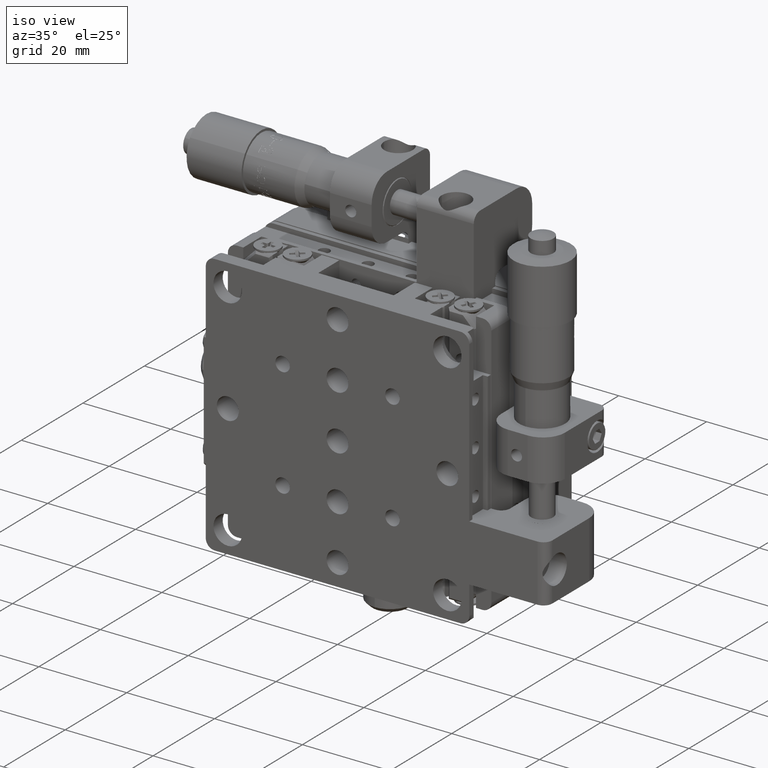
[diagram: clean part render]
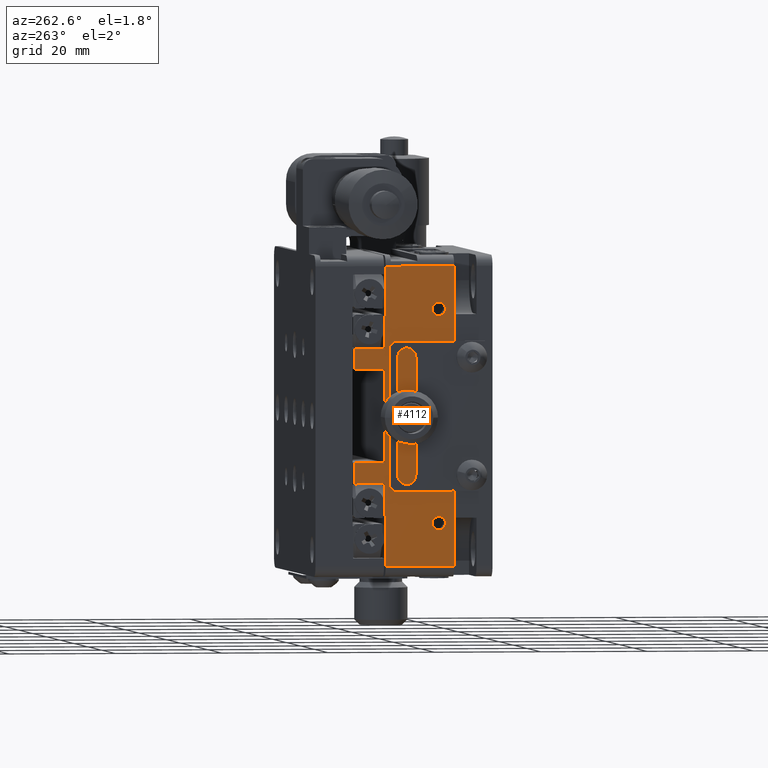
[diagram: tour spotlight — one face highlighted and labeled with its STEP entity id]
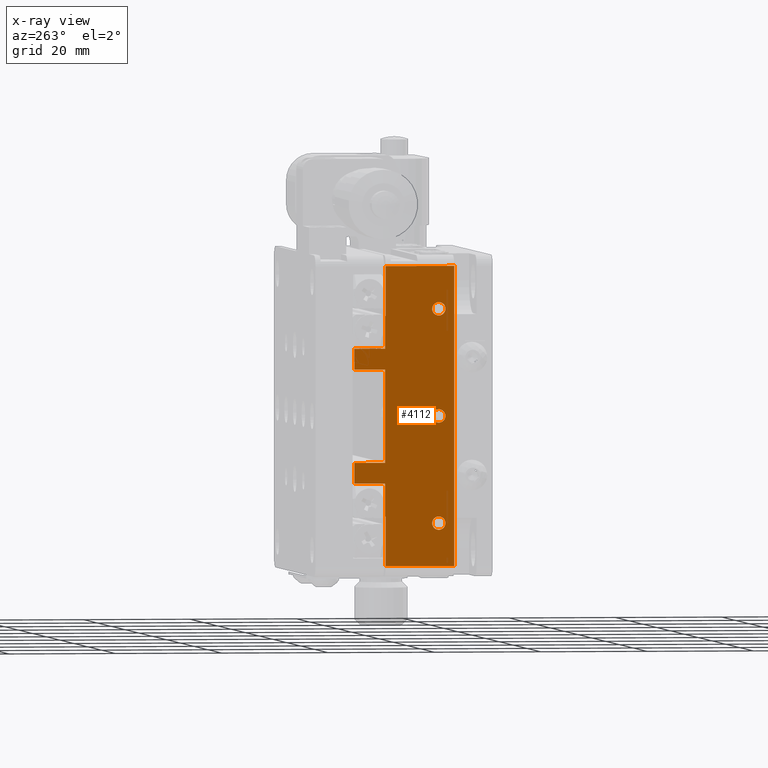
[diagram: x-ray of the same camera — body ghosted, this tour face saturated]
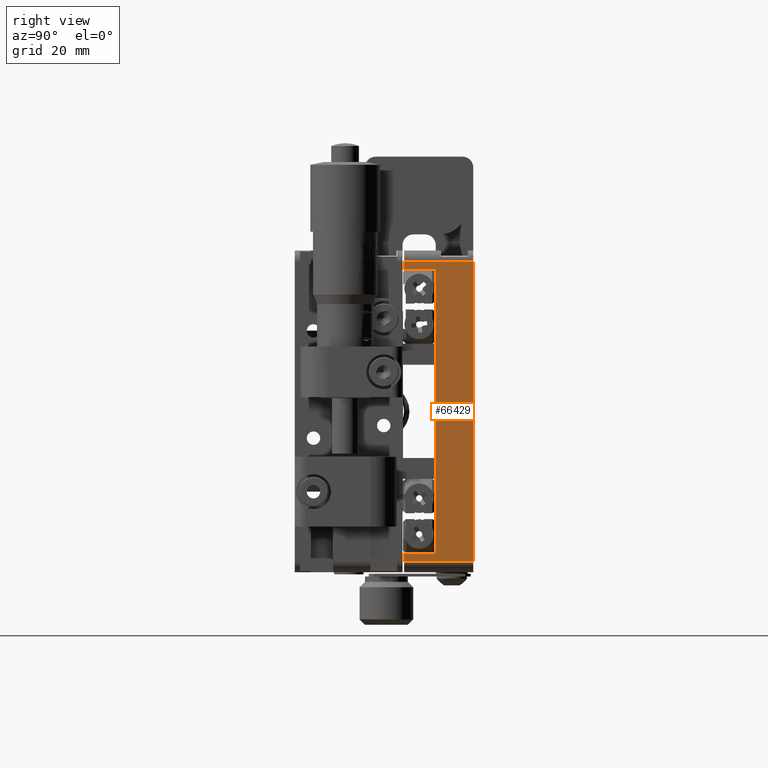
[diagram: tour spotlight — one face highlighted and labeled with its STEP entity id]
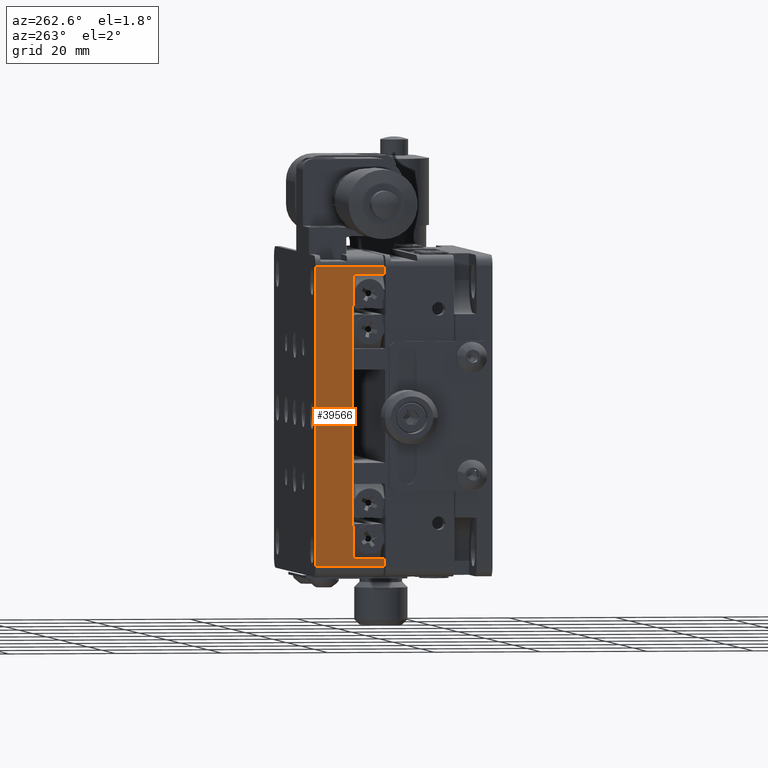
[diagram: tour spotlight — one face highlighted and labeled with its STEP entity id]
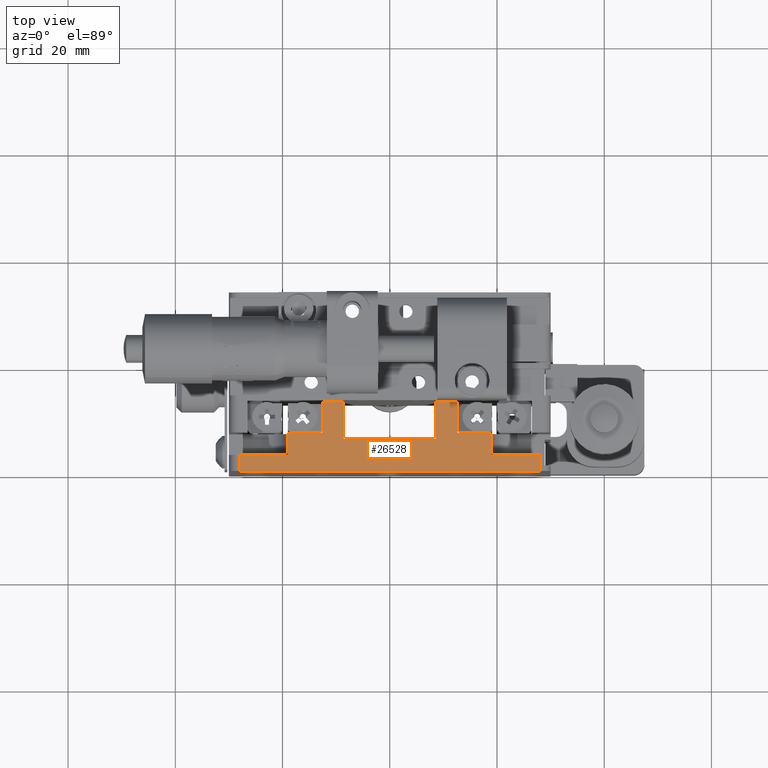
[diagram: tour spotlight — one face highlighted and labeled with its STEP entity id]
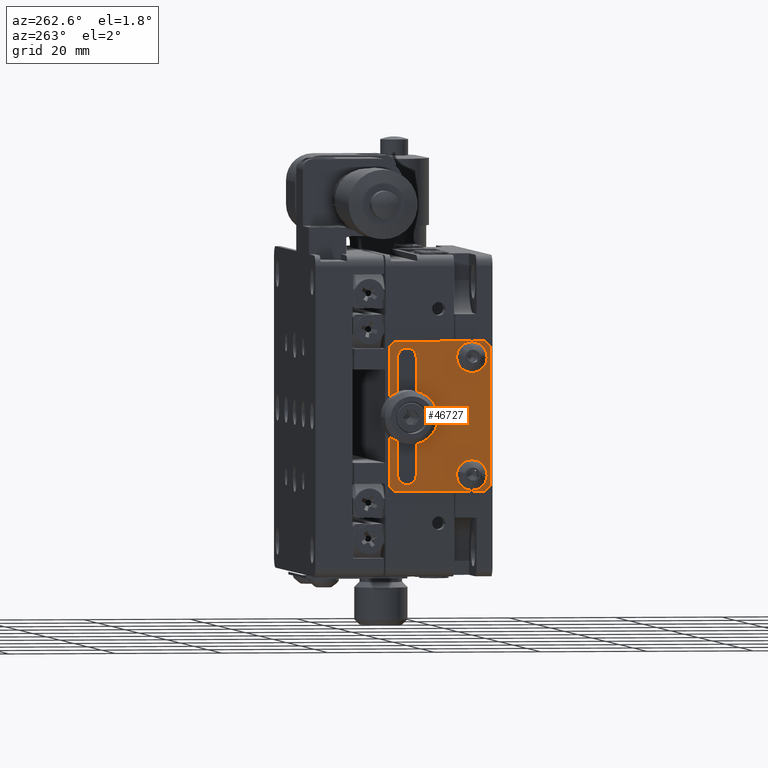
[diagram: tour spotlight — one face highlighted and labeled with its STEP entity id]
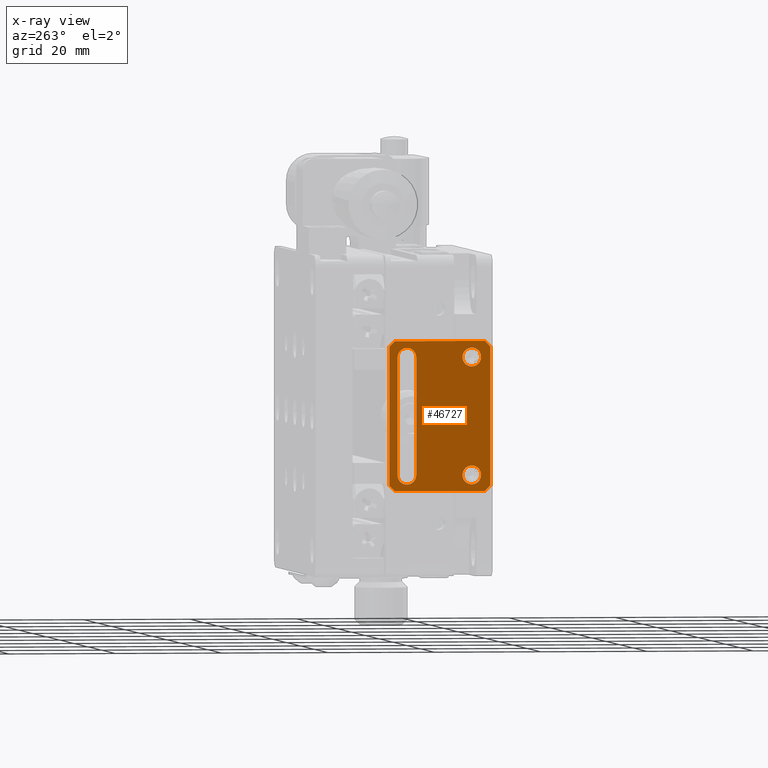
[diagram: x-ray of the same camera — body ghosted, this tour face saturated]
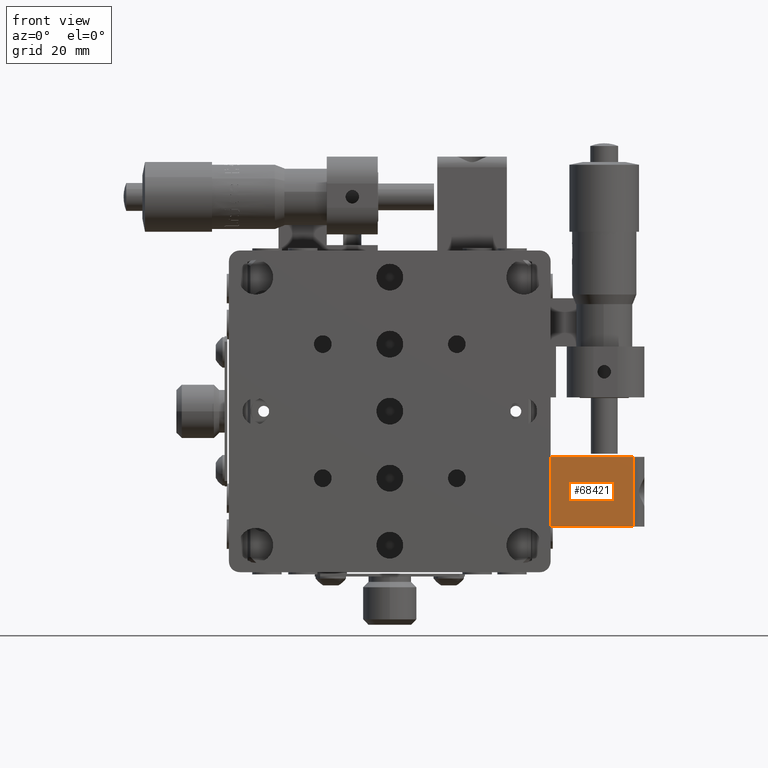
[diagram: tour spotlight — one face highlighted and labeled with its STEP entity id]
A machine part: a face-by-face anatomy tour. The part has 1107 B-rep faces; the first image is the clean iso view, then the 6 largest visible faces are spotlighted one at a time (largest first), each with its STEP entity span.

Face 1 — auxiliary view, entity #4112. An x-ray twin of the same camera follows (body ghosted, this face saturated) — the face is partly hidden behind the body. In plain terms, the highlighted planar face has unit normal (-1, -0, 0).
Definition (entity closure, byte-faithful):
#25 = VERTEX_POINT ( 'NONE', #13149 ) ;
#677 = VERTEX_POINT ( 'NONE', #17943 ) ;
#837 = DIRECTION ( 'NONE',  ( -1.000000000000000000, -0.0000000000000000000, 0.0000000000000000000 ) ) ;
#1260 = CARTESIAN_POINT ( 'NONE',  ( -30.00000000000000000, 10.10000000000000100, -18.75000000000001100 ) ) ;
#1470 = EDGE_CURVE ( 'NONE', #13061, #60375, #19374, .T. ) ;
#1872 = CARTESIAN_POINT ( 'NONE',  ( -30.00000000000000000, 7.200000000000158300, -27.99999999999999600 ) ) ;
#1946 = LINE ( 'NONE', #25241, #31737 ) ;
#2062 = LINE ( 'NONE', #28461, #44953 ) ;
#2234 = ORIENTED_EDGE ( 'NONE', *, *, #13195, .F. ) ;
#2461 = CARTESIAN_POINT ( 'NONE',  ( -30.00000000000000000, 26.00000000000000000, 8.700000000000001100 ) ) ;
#2639 = DIRECTION ( 'NONE',  ( -1.000000000000000000, -0.0000000000000000000, 0.0000000000000000000 ) ) ;
#2894 = EDGE_CURVE ( 'NONE', #58228, #24151, #30520, .T. ) ;
#3709 = VERTEX_POINT ( 'NONE', #5656 ) ;
#3925 = LINE ( 'NONE', #17276, #17055 ) ;
#4011 = FACE_BOUND ( 'NONE', #43102, .T. ) ;
#4104 = EDGE_CURVE ( 'NONE', #22800, #56364, #17147, .T. ) ;
#4112 = ADVANCED_FACE ( 'NONE', ( #59999, #46860, #45124, #4011, #30247 ), #63216, .T. ) ;
#4419 = EDGE_CURVE ( 'NONE', #27476, #37978, #7529, .T. ) ;
#4683 = DIRECTION ( 'NONE',  ( 0.0000000000000000000, 0.0000000000000000000, 1.000000000000000000 ) ) ;
#5570 = VERTEX_POINT ( 'NONE', #55287 ) ;
#5656 = CARTESIAN_POINT ( 'NONE',  ( -30.00000000000000000, 20.19999999999999600, 8.700000000000001100 ) ) ;
#5943 = ORIENTED_EDGE ( 'NONE', *, *, #43593, .F. ) ;
#5981 = CARTESIAN_POINT ( 'NONE',  ( -30.00000000000000000, 10.10000000000000100, -1.249999999999988900 ) ) ;
#6249 = DIRECTION ( 'NONE',  ( -1.000000000000000000, -0.0000000000000000000, 0.0000000000000000000 ) ) ;
#6456 = EDGE_LOOP ( 'NONE', ( #66557, #36128 ) ) ;
#6815 = EDGE_CURVE ( 'NONE', #24151, #45379, #16518, .T. ) ;
#7035 = ORIENTED_EDGE ( 'NONE', *, *, #13941, .F. ) ;
#7529 = LINE ( 'NONE', #44794, #50386 ) ;
#7997 = AXIS2_PLACEMENT_3D ( 'NONE', #36216, #2639, #41782 ) ;
#9114 = CARTESIAN_POINT ( 'NONE',  ( -30.00000000000000000, 10.10000000000000100, 0.0000000000000000000 ) ) ;
#9391 = EDGE_CURVE ( 'NONE', #677, #48885, #3925, .T. ) ;
#9556 = CARTESIAN_POINT ( 'NONE',  ( -30.00000000000000000, 20.19999999999999900, 18.70000000000000300 ) ) ;
#9820 = EDGE_CURVE ( 'NONE', #31748, #20295, #47566, .T. ) ;
#9873 = CARTESIAN_POINT ( 'NONE',  ( -30.00000000000000000, 10.10000000000000100, 1.249999999999988900 ) ) ;
#10441 = ORIENTED_EDGE ( 'NONE', *, *, #4419, .F. ) ;
#10526 = VERTEX_POINT ( 'NONE', #19782 ) ;
#11598 = DIRECTION ( 'NONE',  ( 0.0000000000000000000, 0.0000000000000000000, 1.000000000000000000 ) ) ;
#12065 = AXIS2_PLACEMENT_3D ( 'NONE', #45982, #12480, #51607 ) ;
#12458 = ORIENTED_EDGE ( 'NONE', *, *, #71784, .F. ) ;
#12480 = DIRECTION ( 'NONE',  ( -1.000000000000000000, -0.0000000000000000000, 0.0000000000000000000 ) ) ;
#12805 = CARTESIAN_POINT ( 'NONE',  ( -30.00000000000000000, 10.10000000000000100, 0.0000000000000000000 ) ) ;
#13053 = CARTESIAN_POINT ( 'NONE',  ( -30.00000000000000000, 14.10000000000003000, -18.69999999999999600 ) ) ;
#13061 = VERTEX_POINT ( 'NONE', #1260 ) ;
#13149 = CARTESIAN_POINT ( 'NONE',  ( -30.00000000000000000, 20.10000000000000100, 18.70000000000000300 ) ) ;
#13195 = EDGE_CURVE ( 'NONE', #3709, #10526, #32958, .T. ) ;
#13941 = EDGE_CURVE ( 'NONE', #42204, #3709, #66911, .T. ) ;
#14303 = VERTEX_POINT ( 'NONE', #40543 ) ;
#14717 = DIRECTION ( 'NONE',  ( 0.0000000000000000000, 0.0000000000000000000, 1.000000000000000000 ) ) ;
#15358 = DIRECTION ( 'NONE',  ( -0.0000000000000000000, -1.000000000000000000, -0.0000000000000000000 ) ) ;
#15653 = VECTOR ( 'NONE', #51913, 1000.000000000000000 ) ;
#16018 = LINE ( 'NONE', #31488, #58863 ) ;
#16322 = VECTOR ( 'NONE', #55196, 1000.000000000000000 ) ;
#16518 = LINE ( 'NONE', #9556, #66405 ) ;
#16665 = CIRCLE ( 'NONE', #12065, 1.249999999999987100 ) ;
#17055 = VECTOR ( 'NONE', #56375, 1000.000000000000000 ) ;
#17147 = CIRCLE ( 'NONE', #44920, 1.249999999999988900 ) ;
#17206 = DIRECTION ( 'NONE',  ( -1.000000000000000000, -0.0000000000000000000, 0.0000000000000000000 ) ) ;
#17215 = DIRECTION ( 'NONE',  ( -0.0000000000000000000, -0.0000000000000000000, 1.000000000000000000 ) ) ;
#17276 = CARTESIAN_POINT ( 'NONE',  ( -30.00000000000000000, 20.10000000000000900, 28.00000000000000400 ) ) ;
#17917 = CARTESIAN_POINT ( 'NONE',  ( -30.00000000000000000, 20.19999999999999900, -18.69999999999999600 ) ) ;
#17943 = CARTESIAN_POINT ( 'NONE',  ( -30.00000000000000000, 7.200000000000052600, 27.99999999999995400 ) ) ;
#18098 = VECTOR ( 'NONE', #47217, 1000.000000000000000 ) ;
#18099 = LINE ( 'NONE', #49596, #16322 ) ;
#18467 = DIRECTION ( 'NONE',  ( 0.0000000000000000000, 0.0000000000000000000, 1.000000000000000000 ) ) ;
#18722 = VECTOR ( 'NONE', #4683, 1000.000000000000000 ) ;
#18725 = DIRECTION ( 'NONE',  ( 0.0000000000000000000, 0.0000000000000000000, 1.000000000000000000 ) ) ;
#18738 = ORIENTED_EDGE ( 'NONE', *, *, #46664, .F. ) ;
#18944 = VECTOR ( 'NONE', #15358, 1000.000000000000000 ) ;
#19374 = CIRCLE ( 'NONE', #71865, 1.249999999999987100 ) ;
#19392 = CARTESIAN_POINT ( 'NONE',  ( -30.00000000000000000, 20.19999999999999600, -8.699999999999997500 ) ) ;
#19782 = CARTESIAN_POINT ( 'NONE',  ( -30.00000000000000000, 26.00000000000000000, 8.700000000000001100 ) ) ;
#20295 = VERTEX_POINT ( 'NONE', #27794 ) ;
#21621 = CARTESIAN_POINT ( 'NONE',  ( -30.00000000000000000, 26.00000000000000000, -8.699999999999997500 ) ) ;
#22800 = VERTEX_POINT ( 'NONE', #5981 ) ;
#23106 = LINE ( 'NONE', #50681, #64232 ) ;
#24151 = VERTEX_POINT ( 'NONE', #60284 ) ;
#24165 = CARTESIAN_POINT ( 'NONE',  ( -30.00000000000000000, 10.10000000000000100, -21.24999999999998600 ) ) ;
#24865 = EDGE_CURVE ( 'NONE', #60375, #13061, #16665, .T. ) ;
#25241 = CARTESIAN_POINT ( 'NONE',  ( -30.00000000000000000, 20.10000000000000100, 30.00000000000000400 ) ) ;
#25580 = AXIS2_PLACEMENT_3D ( 'NONE', #39778, #6249, #45360 ) ;
#25803 = DIRECTION ( 'NONE',  ( 0.0000000000000000000, 1.000000000000000000, 0.0000000000000000000 ) ) ;
#27068 = CIRCLE ( 'NONE', #51588, 1.249999999999987100 ) ;
#27274 = CARTESIAN_POINT ( 'NONE',  ( -30.00000000000000000, 20.19999999999999900, 18.70000000000000300 ) ) ;
#27476 = VERTEX_POINT ( 'NONE', #48122 ) ;
#27794 = CARTESIAN_POINT ( 'NONE',  ( -30.00000000000000000, 10.10000000000000700, 18.75000000000001800 ) ) ;
#28047 = CARTESIAN_POINT ( 'NONE',  ( -30.00000000000000000, 26.00000000000000000, -12.59999999999999800 ) ) ;
#28259 = DIRECTION ( 'NONE',  ( 0.0000000000000000000, -9.969675149291995700E-017, 1.000000000000000000 ) ) ;
#28309 = EDGE_CURVE ( 'NONE', #56364, #22800, #33128, .T. ) ;
#28461 = CARTESIAN_POINT ( 'NONE',  ( -30.00000000000000000, 26.00000000000000000, -12.59999999999999800 ) ) ;
#29168 = CARTESIAN_POINT ( 'NONE',  ( -30.00000000000000000, 10.10000000000000700, 20.00000000000000400 ) ) ;
#29681 = EDGE_CURVE ( 'NONE', #10526, #58228, #23106, .T. ) ;
#30247 = FACE_OUTER_BOUND ( 'NONE', #34420, .T. ) ;
#30520 = LINE ( 'NONE', #68773, #15653 ) ;
#30701 = LINE ( 'NONE', #28047, #43811 ) ;
#30794 = ORIENTED_EDGE ( 'NONE', *, *, #29681, .F. ) ;
#31488 = CARTESIAN_POINT ( 'NONE',  ( -30.00000000000000000, 26.00000000000000000, -8.699999999999997500 ) ) ;
#31737 = VECTOR ( 'NONE', #64374, 1000.000000000000000 ) ;
#31748 = VERTEX_POINT ( 'NONE', #33587 ) ;
#31923 = VECTOR ( 'NONE', #25803, 1000.000000000000000 ) ;
#31982 = CARTESIAN_POINT ( 'NONE',  ( -30.00000000000000000, 7.200000000000162700, -27.99999999999999600 ) ) ;
#32958 = LINE ( 'NONE', #2461, #18098 ) ;
#33128 = CIRCLE ( 'NONE', #67934, 1.249999999999988900 ) ;
#33225 = EDGE_CURVE ( 'NONE', #25, #48885, #1946, .T. ) ;
#33587 = CARTESIAN_POINT ( 'NONE',  ( -30.00000000000000000, 10.10000000000000700, 21.24999999999999300 ) ) ;
#33828 = LINE ( 'NONE', #31982, #18944 ) ;
#34409 = CARTESIAN_POINT ( 'NONE',  ( -30.00000000000000000, 10.10000000000000700, 20.00000000000000400 ) ) ;
#34420 = EDGE_LOOP ( 'NONE', ( #10441, #41863, #12458, #68851, #35937, #39067, #69493, #70655, #30794, #2234, #7035, #46189, #5943, #46806, #55157, #41306 ) ) ;
#34451 = CARTESIAN_POINT ( 'NONE',  ( -30.00000000000000000, 20.19999999999999900, 18.70000000000000300 ) ) ;
#34851 = DIRECTION ( 'NONE',  ( 0.0000000000000000000, 0.0000000000000000000, 1.000000000000000000 ) ) ;
#35471 = EDGE_CURVE ( 'NONE', #37978, #37944, #59920, .T. ) ;
#35687 = CARTESIAN_POINT ( 'NONE',  ( -30.00000000000000000, 20.10000000000000100, 28.00000000000000400 ) ) ;
#35835 = CIRCLE ( 'NONE', #7997, 1.249999999999988900 ) ;
#35937 = ORIENTED_EDGE ( 'NONE', *, *, #33225, .F. ) ;
#36128 = ORIENTED_EDGE ( 'NONE', *, *, #24865, .F. ) ;
#36216 = CARTESIAN_POINT ( 'NONE',  ( -30.00000000000000000, 16.40000000000000600, 1.734723475976807100E-015 ) ) ;
#37395 = EDGE_CURVE ( 'NONE', #20295, #31748, #27068, .T. ) ;
#37944 = VERTEX_POINT ( 'NONE', #17917 ) ;
#37978 = VERTEX_POINT ( 'NONE', #63124 ) ;
#39067 = ORIENTED_EDGE ( 'NONE', *, *, #52627, .F. ) ;
#39280 = CARTESIAN_POINT ( 'NONE',  ( -30.00000000000000000, 20.19999999999999600, -8.699999999999997500 ) ) ;
#39434 = DIRECTION ( 'NONE',  ( 0.0000000000000000000, -1.535153518563545600E-016, 1.000000000000000000 ) ) ;
#39778 = CARTESIAN_POINT ( 'NONE',  ( -30.00000000000000000, 16.40000000000000600, 1.734723475976807100E-015 ) ) ;
#40018 = DIRECTION ( 'NONE',  ( 0.0000000000000000000, 0.0000000000000000000, 1.000000000000000000 ) ) ;
#40543 = CARTESIAN_POINT ( 'NONE',  ( -30.00000000000000000, 16.40000000000000600, 1.249999999999990700 ) ) ;
#41306 = ORIENTED_EDGE ( 'NONE', *, *, #35471, .F. ) ;
#41782 = DIRECTION ( 'NONE',  ( 0.0000000000000000000, 0.0000000000000000000, 1.000000000000000000 ) ) ;
#41863 = ORIENTED_EDGE ( 'NONE', *, *, #66038, .T. ) ;
#42204 = VERTEX_POINT ( 'NONE', #19392 ) ;
#42639 = EDGE_LOOP ( 'NONE', ( #69184, #18738 ) ) ;
#42835 = VERTEX_POINT ( 'NONE', #59879 ) ;
#43102 = EDGE_LOOP ( 'NONE', ( #50101, #55464 ) ) ;
#43251 = CARTESIAN_POINT ( 'NONE',  ( -30.00000000000000000, 26.00000000000000000, 12.60000000000000100 ) ) ;
#43593 = EDGE_CURVE ( 'NONE', #42835, #45724, #2062, .T. ) ;
#43811 = VECTOR ( 'NONE', #61554, 1000.000000000000000 ) ;
#44149 = DIRECTION ( 'NONE',  ( 0.0000000000000000000, -1.000000000000000000, 0.0000000000000000000 ) ) ;
#44794 = CARTESIAN_POINT ( 'NONE',  ( -30.00000000000000000, 20.10000000000000100, -30.00000000000000000 ) ) ;
#44920 = AXIS2_PLACEMENT_3D ( 'NONE', #12805, #51942, #18467 ) ;
#44953 = VECTOR ( 'NONE', #11598, 1000.000000000000000 ) ;
#45124 = FACE_BOUND ( 'NONE', #47821, .T. ) ;
#45360 = DIRECTION ( 'NONE',  ( 0.0000000000000000000, 0.0000000000000000000, 1.000000000000000000 ) ) ;
#45379 = VERTEX_POINT ( 'NONE', #34451 ) ;
#45724 = VERTEX_POINT ( 'NONE', #21621 ) ;
#45982 = CARTESIAN_POINT ( 'NONE',  ( -30.00000000000000000, 10.10000000000000100, -19.99999999999999600 ) ) ;
#46146 = CARTESIAN_POINT ( 'NONE',  ( -30.00000000000000000, 16.40000000000000600, -1.249999999999987100 ) ) ;
#46189 = ORIENTED_EDGE ( 'NONE', *, *, #53987, .F. ) ;
#46664 = EDGE_CURVE ( 'NONE', #70516, #14303, #35835, .T. ) ;
#46806 = ORIENTED_EDGE ( 'NONE', *, *, #70392, .F. ) ;
#46860 = FACE_BOUND ( 'NONE', #42639, .T. ) ;
#47217 = DIRECTION ( 'NONE',  ( 0.0000000000000000000, 1.000000000000000000, 0.0000000000000000000 ) ) ;
#47566 = CIRCLE ( 'NONE', #62737, 1.249999999999987100 ) ;
#47821 = EDGE_LOOP ( 'NONE', ( #48594, #62175 ) ) ;
#48060 = CARTESIAN_POINT ( 'NONE',  ( -30.00000000000000000, 20.19999999999999900, -18.69999999999999600 ) ) ;
#48122 = CARTESIAN_POINT ( 'NONE',  ( -30.00000000000000000, 20.10000000000000100, -27.99999999999999600 ) ) ;
#48229 = DIRECTION ( 'NONE',  ( -1.000000000000000000, -0.0000000000000000000, 0.0000000000000000000 ) ) ;
#48554 = VECTOR ( 'NONE', #44149, 1000.000000000000000 ) ;
#48594 = ORIENTED_EDGE ( 'NONE', *, *, #28309, .F. ) ;
#48885 = VERTEX_POINT ( 'NONE', #35687 ) ;
#49596 = CARTESIAN_POINT ( 'NONE',  ( -30.00000000000000000, 7.200000000000162700, -30.00000000000000000 ) ) ;
#50101 = ORIENTED_EDGE ( 'NONE', *, *, #9820, .F. ) ;
#50386 = VECTOR ( 'NONE', #39434, 1000.000000000000000 ) ;
#50681 = CARTESIAN_POINT ( 'NONE',  ( -30.00000000000000000, 26.00000000000000000, 12.60000000000000100 ) ) ;
#51588 = AXIS2_PLACEMENT_3D ( 'NONE', #34409, #837, #40018 ) ;
#51607 = DIRECTION ( 'NONE',  ( 0.0000000000000000000, 0.0000000000000000000, 1.000000000000000000 ) ) ;
#51913 = DIRECTION ( 'NONE',  ( 0.0000000000000000000, -1.000000000000000000, 0.0000000000000000000 ) ) ;
#51942 = DIRECTION ( 'NONE',  ( -1.000000000000000000, -0.0000000000000000000, 0.0000000000000000000 ) ) ;
#52029 = VECTOR ( 'NONE', #28259, 1000.000000000000000 ) ;
#52162 = DIRECTION ( 'NONE',  ( -1.000000000000000000, -0.0000000000000000000, 0.0000000000000000000 ) ) ;
#52627 = EDGE_CURVE ( 'NONE', #45379, #25, #65181, .T. ) ;
#53987 = EDGE_CURVE ( 'NONE', #45724, #42204, #16018, .T. ) ;
#54301 = DIRECTION ( 'NONE',  ( -0.0000000000000000000, -0.0000000000000000000, 1.000000000000000000 ) ) ;
#55085 = CARTESIAN_POINT ( 'NONE',  ( -30.00000000000000000, 10.10000000000000100, -19.99999999999999600 ) ) ;
#55157 = ORIENTED_EDGE ( 'NONE', *, *, #60140, .F. ) ;
#55196 = DIRECTION ( 'NONE',  ( 0.0000000000000000000, 1.894780628693600900E-015, -1.000000000000000000 ) ) ;
#55287 = CARTESIAN_POINT ( 'NONE',  ( -30.00000000000000000, 20.19999999999999900, -12.59999999999999800 ) ) ;
#55464 = ORIENTED_EDGE ( 'NONE', *, *, #37395, .F. ) ;
#56364 = VERTEX_POINT ( 'NONE', #9873 ) ;
#56375 = DIRECTION ( 'NONE',  ( -0.0000000000000000000, 1.000000000000000000, 3.469446951953714000E-015 ) ) ;
#58228 = VERTEX_POINT ( 'NONE', #43251 ) ;
#58863 = VECTOR ( 'NONE', #70576, 1000.000000000000000 ) ;
#59879 = CARTESIAN_POINT ( 'NONE',  ( -30.00000000000000000, 26.00000000000000000, -12.59999999999999800 ) ) ;
#59920 = LINE ( 'NONE', #48060, #31923 ) ;
#59999 = FACE_BOUND ( 'NONE', #6456, .T. ) ;
#60140 = EDGE_CURVE ( 'NONE', #37944, #5570, #63326, .T. ) ;
#60284 = CARTESIAN_POINT ( 'NONE',  ( -30.00000000000000000, 20.19999999999999900, 12.60000000000000100 ) ) ;
#60375 = VERTEX_POINT ( 'NONE', #24165 ) ;
#60674 = CIRCLE ( 'NONE', #25580, 1.249999999999988900 ) ;
#60739 = DIRECTION ( 'NONE',  ( 0.0000000000000000000, 0.0000000000000000000, 1.000000000000000000 ) ) ;
#61554 = DIRECTION ( 'NONE',  ( 0.0000000000000000000, 1.000000000000000000, 0.0000000000000000000 ) ) ;
#62175 = ORIENTED_EDGE ( 'NONE', *, *, #4104, .F. ) ;
#62737 = AXIS2_PLACEMENT_3D ( 'NONE', #29168, #68306, #34851 ) ;
#63124 = CARTESIAN_POINT ( 'NONE',  ( -30.00000000000000000, 20.09999999999999800, -18.69999999999999600 ) ) ;
#63216 = PLANE ( 'NONE',  #71160 ) ;
#63326 = LINE ( 'NONE', #71634, #18722 ) ;
#63388 = EDGE_CURVE ( 'NONE', #14303, #70516, #60674, .T. ) ;
#64232 = VECTOR ( 'NONE', #17215, 1000.000000000000000 ) ;
#64374 = DIRECTION ( 'NONE',  ( -0.0000000000000000000, -0.0000000000000000000, 1.000000000000000000 ) ) ;
#65181 = LINE ( 'NONE', #27274, #48554 ) ;
#66038 = EDGE_CURVE ( 'NONE', #27476, #66875, #33828, .T. ) ;
#66405 = VECTOR ( 'NONE', #54301, 1000.000000000000000 ) ;
#66557 = ORIENTED_EDGE ( 'NONE', *, *, #1470, .F. ) ;
#66875 = VERTEX_POINT ( 'NONE', #1872 ) ;
#66911 = LINE ( 'NONE', #39280, #52029 ) ;
#67934 = AXIS2_PLACEMENT_3D ( 'NONE', #9114, #48229, #14717 ) ;
#68306 = DIRECTION ( 'NONE',  ( -1.000000000000000000, -0.0000000000000000000, 0.0000000000000000000 ) ) ;
#68773 = CARTESIAN_POINT ( 'NONE',  ( -30.00000000000000000, 26.00000000000000000, 12.60000000000000100 ) ) ;
#68851 = ORIENTED_EDGE ( 'NONE', *, *, #9391, .T. ) ;
#69184 = ORIENTED_EDGE ( 'NONE', *, *, #63388, .F. ) ;
#69493 = ORIENTED_EDGE ( 'NONE', *, *, #6815, .F. ) ;
#70392 = EDGE_CURVE ( 'NONE', #5570, #42835, #30701, .T. ) ;
#70516 = VERTEX_POINT ( 'NONE', #46146 ) ;
#70576 = DIRECTION ( 'NONE',  ( 0.0000000000000000000, -1.000000000000000000, 0.0000000000000000000 ) ) ;
#70655 = ORIENTED_EDGE ( 'NONE', *, *, #2894, .F. ) ;
#71160 = AXIS2_PLACEMENT_3D ( 'NONE', #13053, #52162, #18725 ) ;
#71634 = CARTESIAN_POINT ( 'NONE',  ( -30.00000000000000000, 20.19999999999999900, -18.69999999999999600 ) ) ;
#71784 = EDGE_CURVE ( 'NONE', #677, #66875, #18099, .T. ) ;
#71865 = AXIS2_PLACEMENT_3D ( 'NONE', #55085, #17206, #60739 ) ;

Face 2 — right view, entity #66429. In plain terms, the highlighted planar face has unit normal (1, 0, -0).
Definition (entity closure, byte-faithful):
#382 = DIRECTION ( 'NONE',  ( 3.786670474884317500E-017, -1.000000000000000000, 1.232595164407830900E-032 ) ) ;
#1221 = CARTESIAN_POINT ( 'NONE',  ( 30.00000000000000700, 20.39999999999999900, 28.00000000000002800 ) ) ;
#1892 = VECTOR ( 'NONE', #50290, 1000.000000000000000 ) ;
#2094 = VECTOR ( 'NONE', #5673, 1000.000000000000000 ) ;
#2210 = DIRECTION ( 'NONE',  ( -5.551115123125781500E-017, -6.162975822039153400E-033, -1.000000000000000000 ) ) ;
#2652 = VECTOR ( 'NONE', #7412, 1000.000000000000000 ) ;
#4503 = CARTESIAN_POINT ( 'NONE',  ( 30.00000000000000700, 26.19999999999999900, 26.50000000000007800 ) ) ;
#4596 = VERTEX_POINT ( 'NONE', #1221 ) ;
#4759 = AXIS2_PLACEMENT_3D ( 'NONE', #69205, #35760, #2210 ) ;
#5177 = CARTESIAN_POINT ( 'NONE',  ( 30.00000000000000700, 26.19999999999999900, -26.49999999999992500 ) ) ;
#5673 = DIRECTION ( 'NONE',  ( -5.551115123125781500E-017, -6.162975822039153400E-033, -1.000000000000000000 ) ) ;
#7037 = CARTESIAN_POINT ( 'NONE',  ( 30.00000000000000700, 33.29999999999999700, -28.00000000000000700 ) ) ;
#7091 = EDGE_CURVE ( 'NONE', #12089, #35287, #14685, .T. ) ;
#7412 = DIRECTION ( 'NONE',  ( -5.551115123125781500E-017, -6.162975822039153400E-033, -1.000000000000000000 ) ) ;
#8116 = LINE ( 'NONE', #11837, #50972 ) ;
#8162 = VECTOR ( 'NONE', #61392, 1000.000000000000000 ) ;
#10485 = LINE ( 'NONE', #18216, #68227 ) ;
#11612 = DIRECTION ( 'NONE',  ( -3.786670474884380400E-017, 1.000000000000000000, -1.136542967019287600E-014 ) ) ;
#11733 = CARTESIAN_POINT ( 'NONE',  ( 30.00000000000000700, 26.19999999999999900, -26.49999999999992500 ) ) ;
#11837 = CARTESIAN_POINT ( 'NONE',  ( 30.00000000000000700, 26.19999999999999900, 26.50000000000007800 ) ) ;
#12089 = VERTEX_POINT ( 'NONE', #30460 ) ;
#12238 = VECTOR ( 'NONE', #382, 1000.000000000000000 ) ;
#14394 = LINE ( 'NONE', #30950, #72120 ) ;
#14685 = LINE ( 'NONE', #58674, #72428 ) ;
#14694 = EDGE_CURVE ( 'NONE', #45307, #44638, #8116, .T. ) ;
#14758 = DIRECTION ( 'NONE',  ( -5.551115123125742000E-017, -1.049296151322556400E-014, -1.000000000000000000 ) ) ;
#14832 = VERTEX_POINT ( 'NONE', #59218 ) ;
#16930 = VERTEX_POINT ( 'NONE', #48900 ) ;
#16935 = VERTEX_POINT ( 'NONE', #43514 ) ;
#17643 = ORIENTED_EDGE ( 'NONE', *, *, #19876, .T. ) ;
#17648 = ORIENTED_EDGE ( 'NONE', *, *, #23733, .T. ) ;
#18100 = ORIENTED_EDGE ( 'NONE', *, *, #7091, .F. ) ;
#18216 = CARTESIAN_POINT ( 'NONE',  ( 30.00000000000000700, 26.30000000000021000, 20.50000000000008500 ) ) ;
#19876 = EDGE_CURVE ( 'NONE', #68005, #14832, #36248, .T. ) ;
#20000 = ORIENTED_EDGE ( 'NONE', *, *, #46025, .T. ) ;
#20883 = VECTOR ( 'NONE', #45793, 1000.000000000000000 ) ;
#22387 = ORIENTED_EDGE ( 'NONE', *, *, #59355, .T. ) ;
#22700 = CARTESIAN_POINT ( 'NONE',  ( 30.00000000000000700, 26.19999999999999900, -26.49999999999992500 ) ) ;
#23234 = EDGE_CURVE ( 'NONE', #27898, #68005, #37950, .T. ) ;
#23733 = EDGE_CURVE ( 'NONE', #27566, #35287, #44787, .T. ) ;
#25561 = EDGE_CURVE ( 'NONE', #4596, #12089, #35800, .T. ) ;
#26261 = CARTESIAN_POINT ( 'NONE',  ( 30.00000000000000700, 26.30000000000021000, 20.50000000000008500 ) ) ;
#27566 = VERTEX_POINT ( 'NONE', #71106 ) ;
#27898 = VERTEX_POINT ( 'NONE', #31414 ) ;
#29845 = PLANE ( 'NONE',  #4759 ) ;
#30460 = CARTESIAN_POINT ( 'NONE',  ( 30.00000000000000700, 33.29999999999999700, 28.00000000000002800 ) ) ;
#30950 = CARTESIAN_POINT ( 'NONE',  ( 30.00000000000000700, 26.19999999999999900, 26.50000000000007800 ) ) ;
#31414 = CARTESIAN_POINT ( 'NONE',  ( 30.00000000000000700, 26.19999999999999900, -20.49999999999992500 ) ) ;
#31553 = EDGE_CURVE ( 'NONE', #16930, #16935, #40981, .T. ) ;
#32961 = CARTESIAN_POINT ( 'NONE',  ( 30.00000000000000700, 20.39999999999999900, -28.00000000000000700 ) ) ;
#33946 = CARTESIAN_POINT ( 'NONE',  ( 30.00000000000000700, 26.29999999999978000, -20.49999999999992500 ) ) ;
#35287 = VERTEX_POINT ( 'NONE', #7037 ) ;
#35713 = ORIENTED_EDGE ( 'NONE', *, *, #25561, .F. ) ;
#35760 = DIRECTION ( 'NONE',  ( 1.000000000000000000, 3.786670474884318100E-017, -5.551115123125781500E-017 ) ) ;
#35800 = LINE ( 'NONE', #51406, #20883 ) ;
#36248 = LINE ( 'NONE', #11733, #49327 ) ;
#37008 = ORIENTED_EDGE ( 'NONE', *, *, #41430, .T. ) ;
#37950 = LINE ( 'NONE', #5177, #8162 ) ;
#39636 = DIRECTION ( 'NONE',  ( 3.786670474884377300E-017, -1.000000000000000000, 1.076724916123535700E-014 ) ) ;
#40281 = CARTESIAN_POINT ( 'NONE',  ( 30.00000000000000700, 26.19999999999999900, 20.50000000000008500 ) ) ;
#40587 = ORIENTED_EDGE ( 'NONE', *, *, #45038, .T. ) ;
#40697 = DIRECTION ( 'NONE',  ( -3.786670474884317500E-017, 1.000000000000000000, -1.232595164407830900E-032 ) ) ;
#40981 = LINE ( 'NONE', #26261, #68953 ) ;
#41273 = EDGE_LOOP ( 'NONE', ( #53007, #22387, #47807, #61181, #37008, #66718, #17643, #40587, #17648, #18100, #35713, #20000 ) ) ;
#41430 = EDGE_CURVE ( 'NONE', #16935, #27898, #56860, .T. ) ;
#42192 = DIRECTION ( 'NONE',  ( -5.551115123125780900E-017, -1.445602896647341100E-016, -1.000000000000000000 ) ) ;
#43514 = CARTESIAN_POINT ( 'NONE',  ( 30.00000000000000700, 26.29999999999978000, -20.49999999999992500 ) ) ;
#44638 = VERTEX_POINT ( 'NONE', #4503 ) ;
#44787 = LINE ( 'NONE', #32961, #1892 ) ;
#45038 = EDGE_CURVE ( 'NONE', #14832, #27566, #61601, .T. ) ;
#45307 = VERTEX_POINT ( 'NONE', #53540 ) ;
#45793 = DIRECTION ( 'NONE',  ( -3.786670474884317500E-017, 1.000000000000000000, -1.232595164407830900E-032 ) ) ;
#46025 = EDGE_CURVE ( 'NONE', #4596, #45307, #47284, .T. ) ;
#47284 = LINE ( 'NONE', #68545, #2652 ) ;
#47453 = DIRECTION ( 'NONE',  ( -5.551115123125781500E-017, -6.162975822039153400E-033, -1.000000000000000000 ) ) ;
#47807 = ORIENTED_EDGE ( 'NONE', *, *, #57549, .T. ) ;
#48900 = CARTESIAN_POINT ( 'NONE',  ( 30.00000000000000700, 26.30000000000021000, 20.50000000000008500 ) ) ;
#49242 = VERTEX_POINT ( 'NONE', #40281 ) ;
#49327 = VECTOR ( 'NONE', #39636, 1000.000000000000000 ) ;
#50290 = DIRECTION ( 'NONE',  ( -3.786670474884317500E-017, 1.000000000000000000, -1.232595164407830900E-032 ) ) ;
#50972 = VECTOR ( 'NONE', #11612, 1000.000000000000000 ) ;
#51406 = CARTESIAN_POINT ( 'NONE',  ( 30.00000000000000700, 20.39999999999999900, 28.00000000000002800 ) ) ;
#53007 = ORIENTED_EDGE ( 'NONE', *, *, #14694, .T. ) ;
#53540 = CARTESIAN_POINT ( 'NONE',  ( 30.00000000000000700, 20.39999999999999900, 26.50000000000014600 ) ) ;
#56004 = CARTESIAN_POINT ( 'NONE',  ( 30.00000000000000700, 20.39999999999999900, 28.00000000000002800 ) ) ;
#56860 = LINE ( 'NONE', #33946, #12238 ) ;
#57549 = EDGE_CURVE ( 'NONE', #49242, #16930, #10485, .T. ) ;
#58674 = CARTESIAN_POINT ( 'NONE',  ( 30.00000000000000700, 33.29999999999999700, 28.00000000000002800 ) ) ;
#59218 = CARTESIAN_POINT ( 'NONE',  ( 30.00000000000000700, 20.39999999999999900, -26.49999999999986500 ) ) ;
#59355 = EDGE_CURVE ( 'NONE', #44638, #49242, #14394, .T. ) ;
#61181 = ORIENTED_EDGE ( 'NONE', *, *, #31553, .T. ) ;
#61392 = DIRECTION ( 'NONE',  ( -5.551115123125781500E-017, -6.162975822039153400E-033, -1.000000000000000000 ) ) ;
#61601 = LINE ( 'NONE', #56004, #2094 ) ;
#63570 = FACE_OUTER_BOUND ( 'NONE', #41273, .T. ) ;
#66429 = ADVANCED_FACE ( 'NONE', ( #63570 ), #29845, .T. ) ;
#66718 = ORIENTED_EDGE ( 'NONE', *, *, #23234, .T. ) ;
#68005 = VERTEX_POINT ( 'NONE', #22700 ) ;
#68227 = VECTOR ( 'NONE', #40697, 1000.000000000000000 ) ;
#68545 = CARTESIAN_POINT ( 'NONE',  ( 30.00000000000000700, 20.39999999999999900, 28.00000000000002800 ) ) ;
#68953 = VECTOR ( 'NONE', #14758, 1000.000000000000000 ) ;
#69205 = CARTESIAN_POINT ( 'NONE',  ( 30.00000000000000700, 20.39999999999999900, 28.00000000000002800 ) ) ;
#71106 = CARTESIAN_POINT ( 'NONE',  ( 30.00000000000000700, 20.39999999999999900, -28.00000000000000700 ) ) ;
#72120 = VECTOR ( 'NONE', #42192, 1000.000000000000000 ) ;
#72428 = VECTOR ( 'NONE', #47453, 1000.000000000000000 ) ;

Face 3 — auxiliary view, entity #39566. In plain terms, the highlighted planar face has unit normal (-1, -0, 0).
Definition (entity closure, byte-faithful):
#1055 = DIRECTION ( 'NONE',  ( 5.551115123125782100E-017, 6.162975822039154000E-033, 1.000000000000000000 ) ) ;
#2900 = CARTESIAN_POINT ( 'NONE',  ( -30.00000000000000700, 20.39999999999999500, 28.00000000000000000 ) ) ;
#2951 = CARTESIAN_POINT ( 'NONE',  ( -30.00000000000000700, 26.19999999999999600, -26.49999999999992500 ) ) ;
#3129 = EDGE_CURVE ( 'NONE', #63162, #62077, #24334, .T. ) ;
#3344 = EDGE_CURVE ( 'NONE', #63162, #4874, #56682, .T. ) ;
#4874 = VERTEX_POINT ( 'NONE', #43746 ) ;
#5631 = PLANE ( 'NONE',  #70962 ) ;
#5862 = DIRECTION ( 'NONE',  ( -1.000000000000000000, -3.786670474884318100E-017, 5.551115123125781500E-017 ) ) ;
#7147 = DIRECTION ( 'NONE',  ( -3.786670474884317500E-017, 1.000000000000000000, -1.232595164407830900E-032 ) ) ;
#8400 = LINE ( 'NONE', #28913, #23277 ) ;
#8514 = DIRECTION ( 'NONE',  ( -3.786670474884317500E-017, 1.000000000000000000, -1.232595164407830900E-032 ) ) ;
#8529 = CARTESIAN_POINT ( 'NONE',  ( -30.00000000000000700, 26.19999999999999600, 26.50000000000007800 ) ) ;
#9410 = CARTESIAN_POINT ( 'NONE',  ( -30.00000000000000700, 33.29999999999999700, -28.00000000000000700 ) ) ;
#10955 = CARTESIAN_POINT ( 'NONE',  ( -30.00000000000000700, 26.19999999999999600, -20.49999999999992500 ) ) ;
#11115 = CARTESIAN_POINT ( 'NONE',  ( -30.00000000000000700, 26.30000000000021000, 20.50000000000008500 ) ) ;
#12825 = VECTOR ( 'NONE', #8514, 1000.000000000000000 ) ;
#14488 = VERTEX_POINT ( 'NONE', #60054 ) ;
#14697 = EDGE_CURVE ( 'NONE', #54778, #25063, #65867, .T. ) ;
#14920 = VERTEX_POINT ( 'NONE', #21794 ) ;
#14984 = VERTEX_POINT ( 'NONE', #61141 ) ;
#16342 = FACE_OUTER_BOUND ( 'NONE', #29739, .T. ) ;
#16677 = ORIENTED_EDGE ( 'NONE', *, *, #48272, .F. ) ;
#17310 = ORIENTED_EDGE ( 'NONE', *, *, #52143, .F. ) ;
#18388 = EDGE_CURVE ( 'NONE', #4874, #37255, #72329, .T. ) ;
#19699 = ORIENTED_EDGE ( 'NONE', *, *, #3344, .T. ) ;
#20472 = CARTESIAN_POINT ( 'NONE',  ( -30.00000000000000700, 33.29999999999999700, 28.00000000000000000 ) ) ;
#20903 = VERTEX_POINT ( 'NONE', #9410 ) ;
#21178 = LINE ( 'NONE', #71177, #36092 ) ;
#21248 = VECTOR ( 'NONE', #28698, 1000.000000000000000 ) ;
#21794 = CARTESIAN_POINT ( 'NONE',  ( -30.00000000000000700, 20.39999999999999500, -28.00000000000000700 ) ) ;
#23277 = VECTOR ( 'NONE', #62432, 1000.000000000000000 ) ;
#24334 = LINE ( 'NONE', #25577, #52331 ) ;
#24899 = LINE ( 'NONE', #51463, #67778 ) ;
#25063 = VERTEX_POINT ( 'NONE', #58904 ) ;
#25577 = CARTESIAN_POINT ( 'NONE',  ( -30.00000000000000700, 26.19999999999999600, 26.50000000000007800 ) ) ;
#25591 = CARTESIAN_POINT ( 'NONE',  ( -30.00000000000000700, 20.39999999999999500, 26.50000000000014600 ) ) ;
#26258 = CARTESIAN_POINT ( 'NONE',  ( -30.00000000000000700, 26.19999999999999600, 26.50000000000007800 ) ) ;
#26579 = VECTOR ( 'NONE', #1055, 1000.000000000000000 ) ;
#28698 = DIRECTION ( 'NONE',  ( -5.551115123125742000E-017, -1.049296151322556400E-014, -1.000000000000000000 ) ) ;
#28913 = CARTESIAN_POINT ( 'NONE',  ( -30.00000000000000700, 26.19999999999999600, -26.49999999999992500 ) ) ;
#29739 = EDGE_LOOP ( 'NONE', ( #38912, #19699, #57846, #38060, #16677, #50840, #51734, #17310, #51735, #46310, #62586, #63392 ) ) ;
#30463 = VECTOR ( 'NONE', #42044, 1000.000000000000000 ) ;
#30845 = DIRECTION ( 'NONE',  ( 3.786670474884377300E-017, -1.000000000000000000, 1.076724916123535700E-014 ) ) ;
#31493 = CARTESIAN_POINT ( 'NONE',  ( -30.00000000000000700, 33.29999999999999700, 28.00000000000000000 ) ) ;
#35579 = CARTESIAN_POINT ( 'NONE',  ( -30.00000000000000700, 26.19999999999999600, 20.50000000000008500 ) ) ;
#35767 = EDGE_CURVE ( 'NONE', #14920, #14984, #56321, .T. ) ;
#35953 = VERTEX_POINT ( 'NONE', #35579 ) ;
#36092 = VECTOR ( 'NONE', #43296, 1000.000000000000000 ) ;
#37255 = VERTEX_POINT ( 'NONE', #20472 ) ;
#37364 = DIRECTION ( 'NONE',  ( -3.786670474884380400E-017, 1.000000000000000000, -1.136542967019287600E-014 ) ) ;
#38060 = ORIENTED_EDGE ( 'NONE', *, *, #61454, .F. ) ;
#38912 = ORIENTED_EDGE ( 'NONE', *, *, #3129, .F. ) ;
#39046 = LINE ( 'NONE', #40648, #68775 ) ;
#39260 = DIRECTION ( 'NONE',  ( 5.551115123125782100E-017, 6.162975822039154000E-033, 1.000000000000000000 ) ) ;
#39368 = CARTESIAN_POINT ( 'NONE',  ( -30.00000000000000700, 20.39999999999999500, 28.00000000000000000 ) ) ;
#39566 = ADVANCED_FACE ( 'NONE', ( #16342 ), #5631, .T. ) ;
#40648 = CARTESIAN_POINT ( 'NONE',  ( -30.00000000000000700, 20.39999999999999500, -28.00000000000000700 ) ) ;
#42044 = DIRECTION ( 'NONE',  ( -5.551115123125780900E-017, -1.445602896647341100E-016, -1.000000000000000000 ) ) ;
#42760 = VECTOR ( 'NONE', #70585, 1000.000000000000000 ) ;
#43296 = DIRECTION ( 'NONE',  ( 3.786670474884317500E-017, -1.000000000000000000, 1.232595164407830900E-032 ) ) ;
#43746 = CARTESIAN_POINT ( 'NONE',  ( -30.00000000000000700, 20.39999999999999500, 28.00000000000000000 ) ) ;
#44509 = LINE ( 'NONE', #31493, #42760 ) ;
#44980 = DIRECTION ( 'NONE',  ( 5.551115123125781500E-017, 6.162975822039153400E-033, 1.000000000000000000 ) ) ;
#45337 = CARTESIAN_POINT ( 'NONE',  ( -30.00000000000000700, 26.30000000000021000, 20.50000000000008500 ) ) ;
#46310 = ORIENTED_EDGE ( 'NONE', *, *, #14697, .F. ) ;
#48272 = EDGE_CURVE ( 'NONE', #14920, #20903, #39046, .T. ) ;
#50473 = CARTESIAN_POINT ( 'NONE',  ( -30.00000000000000700, 20.39999999999999500, 28.00000000000000000 ) ) ;
#50840 = ORIENTED_EDGE ( 'NONE', *, *, #35767, .T. ) ;
#50914 = EDGE_CURVE ( 'NONE', #14488, #14984, #57562, .T. ) ;
#51463 = CARTESIAN_POINT ( 'NONE',  ( -30.00000000000000700, 26.30000000000021000, 20.50000000000008500 ) ) ;
#51734 = ORIENTED_EDGE ( 'NONE', *, *, #50914, .F. ) ;
#51735 = ORIENTED_EDGE ( 'NONE', *, *, #63981, .F. ) ;
#52143 = EDGE_CURVE ( 'NONE', #71864, #14488, #8400, .T. ) ;
#52331 = VECTOR ( 'NONE', #37364, 1000.000000000000000 ) ;
#52787 = EDGE_CURVE ( 'NONE', #35953, #54778, #24899, .T. ) ;
#54778 = VERTEX_POINT ( 'NONE', #11115 ) ;
#56321 = LINE ( 'NONE', #61960, #26579 ) ;
#56682 = LINE ( 'NONE', #50473, #71544 ) ;
#57086 = DIRECTION ( 'NONE',  ( -3.786670474884317500E-017, 1.000000000000000000, -1.232595164407830900E-032 ) ) ;
#57562 = LINE ( 'NONE', #2951, #63688 ) ;
#57846 = ORIENTED_EDGE ( 'NONE', *, *, #18388, .T. ) ;
#58147 = EDGE_CURVE ( 'NONE', #62077, #35953, #60211, .T. ) ;
#58904 = CARTESIAN_POINT ( 'NONE',  ( -30.00000000000000700, 26.29999999999978000, -20.49999999999992500 ) ) ;
#60054 = CARTESIAN_POINT ( 'NONE',  ( -30.00000000000000700, 26.19999999999999600, -26.49999999999992500 ) ) ;
#60211 = LINE ( 'NONE', #8529, #30463 ) ;
#61141 = CARTESIAN_POINT ( 'NONE',  ( -30.00000000000000700, 20.39999999999999500, -26.49999999999990800 ) ) ;
#61454 = EDGE_CURVE ( 'NONE', #20903, #37255, #44509, .T. ) ;
#61960 = CARTESIAN_POINT ( 'NONE',  ( -30.00000000000000700, 20.39999999999999500, 28.00000000000000000 ) ) ;
#62077 = VERTEX_POINT ( 'NONE', #26258 ) ;
#62432 = DIRECTION ( 'NONE',  ( -5.551115123125781500E-017, -6.162975822039153400E-033, -1.000000000000000000 ) ) ;
#62586 = ORIENTED_EDGE ( 'NONE', *, *, #52787, .F. ) ;
#63162 = VERTEX_POINT ( 'NONE', #25591 ) ;
#63392 = ORIENTED_EDGE ( 'NONE', *, *, #58147, .F. ) ;
#63688 = VECTOR ( 'NONE', #30845, 1000.000000000000000 ) ;
#63981 = EDGE_CURVE ( 'NONE', #25063, #71864, #21178, .T. ) ;
#65867 = LINE ( 'NONE', #45337, #21248 ) ;
#67778 = VECTOR ( 'NONE', #57086, 1000.000000000000000 ) ;
#68775 = VECTOR ( 'NONE', #7147, 1000.000000000000000 ) ;
#70585 = DIRECTION ( 'NONE',  ( 5.551115123125782100E-017, 6.162975822039154000E-033, 1.000000000000000000 ) ) ;
#70962 = AXIS2_PLACEMENT_3D ( 'NONE', #39368, #5862, #44980 ) ;
#71177 = CARTESIAN_POINT ( 'NONE',  ( -30.00000000000000700, 26.29999999999978000, -20.49999999999992500 ) ) ;
#71544 = VECTOR ( 'NONE', #39260, 1000.000000000000000 ) ;
#71864 = VERTEX_POINT ( 'NONE', #10955 ) ;
#72329 = LINE ( 'NONE', #2900, #12825 ) ;

Face 4 — top view, entity #26528. In plain terms, the highlighted planar face has unit normal (0, 0, -1).
Definition (entity closure, byte-faithful):
#63 = CARTESIAN_POINT ( 'NONE',  ( 27.99999999999999600, 3.000000000000000000, 30.00000000000000000 ) ) ;
#1132 = PLANE ( 'NONE',  #3116 ) ;
#1170 = VERTEX_POINT ( 'NONE', #47222 ) ;
#1641 = VECTOR ( 'NONE', #47476, 1000.000000000000000 ) ;
#2180 = CARTESIAN_POINT ( 'NONE',  ( 18.99999999999998900, 7.000000000000000000, 30.00000000000000000 ) ) ;
#3015 = EDGE_CURVE ( 'NONE', #57342, #14002, #41889, .T. ) ;
#3116 = AXIS2_PLACEMENT_3D ( 'NONE', #40528, #7023, #46122 ) ;
#3161 = VECTOR ( 'NONE', #34579, 1000.000000000000000 ) ;
#3400 = LINE ( 'NONE', #41841, #1641 ) ;
#3774 = EDGE_CURVE ( 'NONE', #26073, #64389, #25956, .T. ) ;
#4988 = VECTOR ( 'NONE', #41498, 1000.000000000000000 ) ;
#5669 = DIRECTION ( 'NONE',  ( -0.0000000000000000000, 1.000000000000000000, -0.0000000000000000000 ) ) ;
#5844 = CARTESIAN_POINT ( 'NONE',  ( 8.599999999999999600, 6.000000000000000000, 30.00000000000000000 ) ) ;
#6585 = CARTESIAN_POINT ( 'NONE',  ( -30.00000000000000000, 7.000000000000000000, 30.00000000000000000 ) ) ;
#6742 = VECTOR ( 'NONE', #57672, 1000.000000000000000 ) ;
#6957 = ORIENTED_EDGE ( 'NONE', *, *, #40975, .T. ) ;
#7023 = DIRECTION ( 'NONE',  ( 0.0000000000000000000, 0.0000000000000000000, -1.000000000000000000 ) ) ;
#7182 = ORIENTED_EDGE ( 'NONE', *, *, #10886, .F. ) ;
#9607 = VERTEX_POINT ( 'NONE', #20666 ) ;
#10747 = VERTEX_POINT ( 'NONE', #67444 ) ;
#10886 = EDGE_CURVE ( 'NONE', #42322, #35701, #32980, .T. ) ;
#11335 = VECTOR ( 'NONE', #28779, 1000.000000000000000 ) ;
#11572 = VECTOR ( 'NONE', #62775, 1000.000000000000000 ) ;
#11914 = DIRECTION ( 'NONE',  ( 0.0000000000000000000, -1.000000000000000000, 0.0000000000000000000 ) ) ;
#12011 = EDGE_CURVE ( 'NONE', #23730, #38342, #41094, .T. ) ;
#12034 = CARTESIAN_POINT ( 'NONE',  ( -8.599999999999999600, 6.000000000000000000, 30.00000000000000000 ) ) ;
#12932 = ORIENTED_EDGE ( 'NONE', *, *, #48224, .T. ) ;
#13764 = CARTESIAN_POINT ( 'NONE',  ( -8.599999999999999600, 12.90000000000000000, 30.00000000000000000 ) ) ;
#13947 = ORIENTED_EDGE ( 'NONE', *, *, #47910, .F. ) ;
#14002 = VERTEX_POINT ( 'NONE', #56602 ) ;
#16169 = CARTESIAN_POINT ( 'NONE',  ( -12.60000000000000000, 12.90000000000000000, 30.00000000000000000 ) ) ;
#16790 = VECTOR ( 'NONE', #5669, 1000.000000000000000 ) ;
#17946 = LINE ( 'NONE', #46270, #31051 ) ;
#17965 = LINE ( 'NONE', #37372, #60808 ) ;
#18060 = VERTEX_POINT ( 'NONE', #16169 ) ;
#18571 = CARTESIAN_POINT ( 'NONE',  ( 12.60000000000000000, 12.90000000000000000, 30.00000000000000000 ) ) ;
#19321 = ORIENTED_EDGE ( 'NONE', *, *, #71894, .T. ) ;
#19746 = VERTEX_POINT ( 'NONE', #66270 ) ;
#19895 = VECTOR ( 'NONE', #26016, 1000.000000000000000 ) ;
#20073 = CARTESIAN_POINT ( 'NONE',  ( 18.99999999999998900, 7.000000000000000000, 30.00000000000000000 ) ) ;
#20262 = EDGE_CURVE ( 'NONE', #18060, #19746, #70221, .T. ) ;
#20395 = EDGE_CURVE ( 'NONE', #19746, #24432, #71067, .T. ) ;
#20411 = CARTESIAN_POINT ( 'NONE',  ( -30.00000000000000000, 3.000000000000000000, 30.00000000000000000 ) ) ;
#20666 = CARTESIAN_POINT ( 'NONE',  ( 27.99999999999999600, 0.0000000000000000000, 30.00000000000000000 ) ) ;
#21358 = EDGE_CURVE ( 'NONE', #10747, #52982, #3400, .T. ) ;
#23696 = CARTESIAN_POINT ( 'NONE',  ( 8.599999999999999600, 12.90000000000000000, 30.00000000000000000 ) ) ;
#23730 = VERTEX_POINT ( 'NONE', #66444 ) ;
#24047 = CARTESIAN_POINT ( 'NONE',  ( -18.69999999999999900, 7.099999999999999600, 30.00000000000000000 ) ) ;
#24163 = LINE ( 'NONE', #50303, #65293 ) ;
#24432 = VERTEX_POINT ( 'NONE', #24047 ) ;
#25589 = VECTOR ( 'NONE', #61313, 1000.000000000000000 ) ;
#25676 = DIRECTION ( 'NONE',  ( 0.0000000000000000000, 1.000000000000000000, 0.0000000000000000000 ) ) ;
#25956 = LINE ( 'NONE', #61861, #53960 ) ;
#26016 = DIRECTION ( 'NONE',  ( 1.000000000000000000, -0.0000000000000000000, 0.0000000000000000000 ) ) ;
#26073 = VERTEX_POINT ( 'NONE', #2180 ) ;
#26355 = VECTOR ( 'NONE', #56923, 1000.000000000000000 ) ;
#26528 = ADVANCED_FACE ( 'NONE', ( #28519 ), #1132, .F. ) ;
#28519 = FACE_OUTER_BOUND ( 'NONE', #71788, .T. ) ;
#28779 = DIRECTION ( 'NONE',  ( 0.0000000000000000000, -1.000000000000000000, 0.0000000000000000000 ) ) ;
#29487 = CARTESIAN_POINT ( 'NONE',  ( 8.599999999999999600, 12.90000000000000000, 30.00000000000000000 ) ) ;
#30172 = VECTOR ( 'NONE', #11914, 1000.000000000000000 ) ;
#30626 = LINE ( 'NONE', #50533, #41990 ) ;
#31051 = VECTOR ( 'NONE', #63159, 1000.000000000000000 ) ;
#32216 = VECTOR ( 'NONE', #25676, 1000.000000000000000 ) ;
#32709 = EDGE_CURVE ( 'NONE', #38924, #1170, #45053, .T. ) ;
#32980 = LINE ( 'NONE', #35920, #4988 ) ;
#33513 = EDGE_CURVE ( 'NONE', #64389, #69909, #59659, .T. ) ;
#33668 = ORIENTED_EDGE ( 'NONE', *, *, #12011, .T. ) ;
#34579 = DIRECTION ( 'NONE',  ( -1.000000000000000000, -0.0000000000000000000, -0.0000000000000000000 ) ) ;
#35701 = VERTEX_POINT ( 'NONE', #63 ) ;
#35920 = CARTESIAN_POINT ( 'NONE',  ( -30.00000000000000000, 3.000000000000000000, 30.00000000000000000 ) ) ;
#36478 = VERTEX_POINT ( 'NONE', #62363 ) ;
#37104 = VERTEX_POINT ( 'NONE', #18571 ) ;
#37372 = CARTESIAN_POINT ( 'NONE',  ( 12.60000000000000000, 7.099999999999999600, 30.00000000000000000 ) ) ;
#37706 = CARTESIAN_POINT ( 'NONE',  ( 18.69999999999999900, 7.099999999999999600, 30.00000000000000000 ) ) ;
#37734 = CARTESIAN_POINT ( 'NONE',  ( 18.99999999999998900, 3.000000000000000000, 30.00000000000000000 ) ) ;
#38064 = ORIENTED_EDGE ( 'NONE', *, *, #45131, .T. ) ;
#38324 = ORIENTED_EDGE ( 'NONE', *, *, #21358, .T. ) ;
#38342 = VERTEX_POINT ( 'NONE', #5844 ) ;
#38431 = ORIENTED_EDGE ( 'NONE', *, *, #72174, .T. ) ;
#38646 = ORIENTED_EDGE ( 'NONE', *, *, #33513, .T. ) ;
#38775 = ORIENTED_EDGE ( 'NONE', *, *, #32709, .T. ) ;
#38924 = VERTEX_POINT ( 'NONE', #70727 ) ;
#39197 = ORIENTED_EDGE ( 'NONE', *, *, #59859, .T. ) ;
#39407 = CARTESIAN_POINT ( 'NONE',  ( 18.69999999999999900, 7.099999999999999600, 30.00000000000000000 ) ) ;
#39827 = CARTESIAN_POINT ( 'NONE',  ( -27.99999999999999600, 7.000000000000000000, 30.00000000000000000 ) ) ;
#40076 = DIRECTION ( 'NONE',  ( -1.000000000000000000, -0.0000000000000000000, -0.0000000000000000000 ) ) ;
#40528 = CARTESIAN_POINT ( 'NONE',  ( -30.00000000000000000, 7.000000000000000000, 30.00000000000000000 ) ) ;
#40975 = EDGE_CURVE ( 'NONE', #52982, #18060, #41234, .T. ) ;
#41094 = LINE ( 'NONE', #29487, #11335 ) ;
#41234 = LINE ( 'NONE', #67933, #26355 ) ;
#41409 = EDGE_CURVE ( 'NONE', #14002, #47946, #30626, .T. ) ;
#41498 = DIRECTION ( 'NONE',  ( 1.000000000000000000, -0.0000000000000000000, 0.0000000000000000000 ) ) ;
#41841 = CARTESIAN_POINT ( 'NONE',  ( -8.599999999999999600, 12.90000000000000000, 30.00000000000000000 ) ) ;
#41889 = LINE ( 'NONE', #6585, #66378 ) ;
#41990 = VECTOR ( 'NONE', #56173, 1000.000000000000000 ) ;
#42144 = EDGE_CURVE ( 'NONE', #24432, #57342, #70683, .T. ) ;
#42322 = VERTEX_POINT ( 'NONE', #37734 ) ;
#42949 = DIRECTION ( 'NONE',  ( -1.000000000000000000, -0.0000000000000000000, -0.0000000000000000000 ) ) ;
#43134 = CARTESIAN_POINT ( 'NONE',  ( -18.99999999999997500, 3.000000000000000000, 30.00000000000000000 ) ) ;
#45053 = LINE ( 'NONE', #39827, #30172 ) ;
#45131 = EDGE_CURVE ( 'NONE', #36478, #37104, #52850, .T. ) ;
#46122 = DIRECTION ( 'NONE',  ( -1.000000000000000000, 0.0000000000000000000, -0.0000000000000000000 ) ) ;
#46270 = CARTESIAN_POINT ( 'NONE',  ( -30.00000000000000000, 0.0000000000000000000, 30.00000000000000000 ) ) ;
#46991 = CARTESIAN_POINT ( 'NONE',  ( -18.69999999999999900, 7.099999999999999600, 30.00000000000000000 ) ) ;
#47051 = LINE ( 'NONE', #20073, #32216 ) ;
#47222 = CARTESIAN_POINT ( 'NONE',  ( -27.99999999999999600, 0.0000000000000000000, 30.00000000000000000 ) ) ;
#47476 = DIRECTION ( 'NONE',  ( -0.0000000000000000000, 1.000000000000000000, -0.0000000000000000000 ) ) ;
#47799 = LINE ( 'NONE', #12034, #3161 ) ;
#47910 = EDGE_CURVE ( 'NONE', #38924, #47946, #64506, .T. ) ;
#47946 = VERTEX_POINT ( 'NONE', #43134 ) ;
#48224 = EDGE_CURVE ( 'NONE', #38342, #10747, #47799, .T. ) ;
#49827 = CARTESIAN_POINT ( 'NONE',  ( -12.60000000000000000, 12.90000000000000000, 30.00000000000000000 ) ) ;
#50303 = CARTESIAN_POINT ( 'NONE',  ( 27.99999999999999600, 7.000000000000000000, 30.00000000000000000 ) ) ;
#50533 = CARTESIAN_POINT ( 'NONE',  ( -18.99999999999997500, 7.000000000000000000, 30.00000000000000000 ) ) ;
#51010 = ORIENTED_EDGE ( 'NONE', *, *, #65517, .T. ) ;
#51072 = VECTOR ( 'NONE', #67994, 1000.000000000000000 ) ;
#51237 = EDGE_CURVE ( 'NONE', #37104, #23730, #51329, .T. ) ;
#51329 = LINE ( 'NONE', #23696, #6742 ) ;
#51750 = ORIENTED_EDGE ( 'NONE', *, *, #42144, .T. ) ;
#52850 = LINE ( 'NONE', #62372, #51072 ) ;
#52982 = VERTEX_POINT ( 'NONE', #13764 ) ;
#53734 = ORIENTED_EDGE ( 'NONE', *, *, #51237, .T. ) ;
#53960 = VECTOR ( 'NONE', #67242, 1000.000000000000000 ) ;
#55914 = DIRECTION ( 'NONE',  ( 0.0000000000000000000, 1.000000000000000000, 0.0000000000000000000 ) ) ;
#56173 = DIRECTION ( 'NONE',  ( 0.0000000000000000000, -1.000000000000000000, 0.0000000000000000000 ) ) ;
#56602 = CARTESIAN_POINT ( 'NONE',  ( -18.99999999999997500, 7.000000000000000000, 30.00000000000000000 ) ) ;
#56923 = DIRECTION ( 'NONE',  ( -1.000000000000000000, -0.0000000000000000000, -0.0000000000000000000 ) ) ;
#57140 = CARTESIAN_POINT ( 'NONE',  ( -18.69999999999999900, 7.099999999999999600, 30.00000000000000000 ) ) ;
#57342 = VERTEX_POINT ( 'NONE', #61237 ) ;
#57672 = DIRECTION ( 'NONE',  ( -1.000000000000000000, -0.0000000000000000000, -0.0000000000000000000 ) ) ;
#57782 = ORIENTED_EDGE ( 'NONE', *, *, #3015, .T. ) ;
#59659 = LINE ( 'NONE', #39407, #16790 ) ;
#59859 = EDGE_CURVE ( 'NONE', #1170, #9607, #17946, .T. ) ;
#60185 = ORIENTED_EDGE ( 'NONE', *, *, #20395, .T. ) ;
#60808 = VECTOR ( 'NONE', #42949, 1000.000000000000000 ) ;
#61237 = CARTESIAN_POINT ( 'NONE',  ( -18.69999999999999900, 7.000000000000000000, 30.00000000000000000 ) ) ;
#61260 = ORIENTED_EDGE ( 'NONE', *, *, #3774, .T. ) ;
#61313 = DIRECTION ( 'NONE',  ( 0.0000000000000000000, -1.000000000000000000, 0.0000000000000000000 ) ) ;
#61861 = CARTESIAN_POINT ( 'NONE',  ( 18.69999999999999900, 7.000000000000000000, 30.00000000000000000 ) ) ;
#62363 = CARTESIAN_POINT ( 'NONE',  ( 12.60000000000000000, 7.099999999999999600, 30.00000000000000000 ) ) ;
#62372 = CARTESIAN_POINT ( 'NONE',  ( 12.60000000000000000, 12.90000000000000000, 30.00000000000000000 ) ) ;
#62775 = DIRECTION ( 'NONE',  ( -1.000000000000000000, -0.0000000000000000000, -0.0000000000000000000 ) ) ;
#63159 = DIRECTION ( 'NONE',  ( 1.000000000000000000, 0.0000000000000000000, 0.0000000000000000000 ) ) ;
#63658 = ORIENTED_EDGE ( 'NONE', *, *, #41409, .T. ) ;
#63883 = DIRECTION ( 'NONE',  ( 0.0000000000000000000, -1.000000000000000000, 0.0000000000000000000 ) ) ;
#64389 = VERTEX_POINT ( 'NONE', #69624 ) ;
#64506 = LINE ( 'NONE', #20411, #19895 ) ;
#65293 = VECTOR ( 'NONE', #55914, 1000.000000000000000 ) ;
#65517 = EDGE_CURVE ( 'NONE', #42322, #26073, #47051, .T. ) ;
#66270 = CARTESIAN_POINT ( 'NONE',  ( -12.60000000000000000, 7.099999999999999600, 30.00000000000000000 ) ) ;
#66378 = VECTOR ( 'NONE', #40076, 1000.000000000000000 ) ;
#66444 = CARTESIAN_POINT ( 'NONE',  ( 8.599999999999999600, 12.90000000000000000, 30.00000000000000000 ) ) ;
#67242 = DIRECTION ( 'NONE',  ( -1.000000000000000000, -0.0000000000000000000, -0.0000000000000000000 ) ) ;
#67444 = CARTESIAN_POINT ( 'NONE',  ( -8.599999999999999600, 6.000000000000000000, 30.00000000000000000 ) ) ;
#67933 = CARTESIAN_POINT ( 'NONE',  ( -12.60000000000000000, 12.90000000000000000, 30.00000000000000000 ) ) ;
#67994 = DIRECTION ( 'NONE',  ( -0.0000000000000000000, 1.000000000000000000, -0.0000000000000000000 ) ) ;
#68181 = ORIENTED_EDGE ( 'NONE', *, *, #20262, .T. ) ;
#68927 = VECTOR ( 'NONE', #63883, 1000.000000000000000 ) ;
#69624 = CARTESIAN_POINT ( 'NONE',  ( 18.69999999999999900, 7.000000000000000000, 30.00000000000000000 ) ) ;
#69909 = VERTEX_POINT ( 'NONE', #37706 ) ;
#70221 = LINE ( 'NONE', #49827, #25589 ) ;
#70683 = LINE ( 'NONE', #46991, #68927 ) ;
#70727 = CARTESIAN_POINT ( 'NONE',  ( -27.99999999999999600, 3.000000000000000000, 30.00000000000000000 ) ) ;
#71067 = LINE ( 'NONE', #57140, #11572 ) ;
#71788 = EDGE_LOOP ( 'NONE', ( #39197, #19321, #7182, #51010, #61260, #38646, #38431, #38064, #53734, #33668, #12932, #38324, #6957, #68181, #60185, #51750, #57782, #63658, #13947, #38775 ) ) ;
#71894 = EDGE_CURVE ( 'NONE', #9607, #35701, #24163, .T. ) ;
#72174 = EDGE_CURVE ( 'NONE', #69909, #36478, #17965, .T. ) ;

Face 5 — auxiliary view, entity #46727. An x-ray twin of the same camera follows (body ghosted, this face saturated) — the face is partly hidden behind the body. In plain terms, the highlighted planar face has unit normal (-1, 0, -0).
Definition (entity closure, byte-faithful):
#278 = VERTEX_POINT ( 'NONE', #5234 ) ;
#603 = DIRECTION ( 'NONE',  ( -3.653021712992631500E-017, 0.0000000000000000000, 1.000000000000000000 ) ) ;
#657 = CARTESIAN_POINT ( 'NONE',  ( -30.79999999999999700, 9.499999999999968000, -22.99999999999997900 ) ) ;
#732 = FACE_OUTER_BOUND ( 'NONE', #27124, .T. ) ;
#1081 = CIRCLE ( 'NONE', #35238, 1.749999999999999800 ) ;
#1404 = DIRECTION ( 'NONE',  ( 0.0000000000000000000, 0.0000000000000000000, 1.000000000000000000 ) ) ;
#2906 = DIRECTION ( 'NONE',  ( 5.267385868340116000E-017, 0.7071067811865500200, 0.7071067811865451300 ) ) ;
#2914 = CARTESIAN_POINT ( 'NONE',  ( -30.79999999999999700, 16.19999999999999600, -12.75000000000000700 ) ) ;
#4367 = EDGE_CURVE ( 'NONE', #65693, #34402, #35573, .T. ) ;
#5234 = CARTESIAN_POINT ( 'NONE',  ( -30.80000000000000100, 0.5000000000000038900, 13.00000000000001400 ) ) ;
#5478 = CARTESIAN_POINT ( 'NONE',  ( -30.79999999999999700, 14.44999999999999600, 11.00000000000000000 ) ) ;
#5584 = DIRECTION ( 'NONE',  ( 1.000000000000000000, -1.110223024625155100E-016, 3.653021712992629000E-017 ) ) ;
#6352 = DIRECTION ( 'NONE',  ( -5.267385868340098200E-017, -0.7071067811865487900, -0.7071067811865463500 ) ) ;
#7418 = EDGE_CURVE ( 'NONE', #278, #40902, #44374, .T. ) ;
#10164 = CARTESIAN_POINT ( 'NONE',  ( -30.79999999999999700, 1.500000000000001300, -13.99999999999998900 ) ) ;
#10975 = CARTESIAN_POINT ( 'NONE',  ( -30.80000000000000100, 0.5000000000000038900, 14.00000000000000500 ) ) ;
#11934 = CARTESIAN_POINT ( 'NONE',  ( -30.79999999999999700, 18.50000000000000000, 14.00000000000000000 ) ) ;
#12478 = LINE ( 'NONE', #30798, #27334 ) ;
#12584 = CARTESIAN_POINT ( 'NONE',  ( -30.79999999999999700, 1.000000000000004400, -13.49999999999999100 ) ) ;
#13003 = CARTESIAN_POINT ( 'NONE',  ( -30.79999999999999700, 23.50000000000007500, 8.999999999999882800 ) ) ;
#13261 = ORIENTED_EDGE ( 'NONE', *, *, #4367, .T. ) ;
#13376 = LINE ( 'NONE', #18454, #56255 ) ;
#15075 = AXIS2_PLACEMENT_3D ( 'NONE', #68447, #34983, #1404 ) ;
#15114 = EDGE_CURVE ( 'NONE', #34402, #65693, #54517, .T. ) ;
#15247 = EDGE_CURVE ( 'NONE', #278, #19842, #12478, .T. ) ;
#15715 = ORIENTED_EDGE ( 'NONE', *, *, #29045, .T. ) ;
#18011 = DIRECTION ( 'NONE',  ( -1.043353871849764100E-016, -0.7071067811865456900, 0.7071067811865493500 ) ) ;
#18418 = DIRECTION ( 'NONE',  ( 1.000000000000000000, -1.110223024625155100E-016, 3.653021712992629000E-017 ) ) ;
#18454 = CARTESIAN_POINT ( 'NONE',  ( -30.79999999999999700, 19.49999999999999300, 14.00000000000000000 ) ) ;
#18561 = EDGE_LOOP ( 'NONE', ( #58764, #58566 ) ) ;
#18968 = ORIENTED_EDGE ( 'NONE', *, *, #63790, .F. ) ;
#19008 = VECTOR ( 'NONE', #603, 1000.000000000000000 ) ;
#19383 = ORIENTED_EDGE ( 'NONE', *, *, #45957, .F. ) ;
#19516 = CARTESIAN_POINT ( 'NONE',  ( -30.79999999999999700, 19.49999999999999300, -12.99999999999998800 ) ) ;
#19842 = VERTEX_POINT ( 'NONE', #33755 ) ;
#19999 = VERTEX_POINT ( 'NONE', #2914 ) ;
#20260 = PLANE ( 'NONE',  #56718 ) ;
#21073 = EDGE_LOOP ( 'NONE', ( #33104, #15715, #28002, #37772, #37581 ) ) ;
#21725 = CARTESIAN_POINT ( 'NONE',  ( -30.79999999999999700, 0.5000000000000073300, -13.99999999999998400 ) ) ;
#22431 = VECTOR ( 'NONE', #6352, 1000.000000000000000 ) ;
#23059 = ORIENTED_EDGE ( 'NONE', *, *, #61762, .T. ) ;
#24856 = AXIS2_PLACEMENT_3D ( 'NONE', #51897, #18418, #57511 ) ;
#25419 = ORIENTED_EDGE ( 'NONE', *, *, #7418, .F. ) ;
#25673 = CIRCLE ( 'NONE', #15075, 1.750000000000006700 ) ;
#26327 = VECTOR ( 'NONE', #68065, 1000.000000000000000 ) ;
#26819 = CARTESIAN_POINT ( 'NONE',  ( -30.80000000000000100, 4.000000000000000000, 11.00000000000000000 ) ) ;
#27074 = EDGE_CURVE ( 'NONE', #65841, #27411, #54384, .T. ) ;
#27119 = VERTEX_POINT ( 'NONE', #58238 ) ;
#27124 = EDGE_LOOP ( 'NONE', ( #18968, #49213, #19383, #23059, #25419, #38838, #59616, #52044 ) ) ;
#27323 = VECTOR ( 'NONE', #52874, 1000.000000000000000 ) ;
#27328 = DIRECTION ( 'NONE',  ( 3.653021712992631500E-017, 0.0000000000000000000, -1.000000000000000000 ) ) ;
#27334 = VECTOR ( 'NONE', #2906, 1000.000000000000100 ) ;
#27411 = VERTEX_POINT ( 'NONE', #61859 ) ;
#28002 = ORIENTED_EDGE ( 'NONE', *, *, #53751, .T. ) ;
#28075 = DIRECTION ( 'NONE',  ( 3.653021712992632700E-017, 1.239088197126291100E-016, -1.000000000000000000 ) ) ;
#28165 = DIRECTION ( 'NONE',  ( 1.000000000000000000, -1.110223024625155100E-016, 3.653021712992629000E-017 ) ) ;
#28653 = VECTOR ( 'NONE', #18011, 1000.000000000000000 ) ;
#28927 = CARTESIAN_POINT ( 'NONE',  ( -30.79999999999999700, 0.5000000000000073300, -13.99999999999998900 ) ) ;
#29045 = EDGE_CURVE ( 'NONE', #62392, #19999, #52127, .T. ) ;
#29091 = DIRECTION ( 'NONE',  ( 1.000000000000000000, -1.110223024625155100E-016, 3.653021712992629000E-017 ) ) ;
#29333 = DIRECTION ( 'NONE',  ( 1.000000000000000000, -1.110223024625155100E-016, 3.653021712992629000E-017 ) ) ;
#29495 = VECTOR ( 'NONE', #28075, 1000.000000000000000 ) ;
#30411 = LINE ( 'NONE', #12584, #28653 ) ;
#30522 = FACE_BOUND ( 'NONE', #21073, .T. ) ;
#30798 = CARTESIAN_POINT ( 'NONE',  ( -30.80000000000000100, -12.99999999999999500, -0.4999999999998911400 ) ) ;
#32464 = DIRECTION ( 'NONE',  ( 0.0000000000000000000, 0.0000000000000000000, 1.000000000000000000 ) ) ;
#32743 = DIRECTION ( 'NONE',  ( 3.653021712992624700E-017, -6.308085367188394200E-016, -1.000000000000000000 ) ) ;
#33104 = ORIENTED_EDGE ( 'NONE', *, *, #71779, .T. ) ;
#33755 = CARTESIAN_POINT ( 'NONE',  ( -30.80000000000000100, 1.500000000000004900, 14.00000000000000500 ) ) ;
#34051 = VERTEX_POINT ( 'NONE', #10164 ) ;
#34402 = VERTEX_POINT ( 'NONE', #46988 ) ;
#34594 = CIRCLE ( 'NONE', #24856, 1.749999999999999800 ) ;
#34983 = DIRECTION ( 'NONE',  ( 1.000000000000000000, -1.110223024625155100E-016, 3.653021712992629000E-017 ) ) ;
#35238 = AXIS2_PLACEMENT_3D ( 'NONE', #62605, #29091, #68228 ) ;
#35573 = CIRCLE ( 'NONE', #49618, 1.749999999999999800 ) ;
#35757 = AXIS2_PLACEMENT_3D ( 'NONE', #39070, #5584, #44674 ) ;
#37366 = LINE ( 'NONE', #657, #22431 ) ;
#37581 = ORIENTED_EDGE ( 'NONE', *, *, #44004, .T. ) ;
#37772 = ORIENTED_EDGE ( 'NONE', *, *, #51628, .T. ) ;
#38838 = ORIENTED_EDGE ( 'NONE', *, *, #15247, .T. ) ;
#39070 = CARTESIAN_POINT ( 'NONE',  ( -30.79999999999999700, 16.19999999999999600, -11.00000000000000200 ) ) ;
#39116 = VERTEX_POINT ( 'NONE', #56529 ) ;
#39240 = AXIS2_PLACEMENT_3D ( 'NONE', #62861, #29333, #68481 ) ;
#39532 = VECTOR ( 'NONE', #68991, 1000.000000000000000 ) ;
#39605 = EDGE_CURVE ( 'NONE', #52371, #27119, #37366, .T. ) ;
#40707 = DIRECTION ( 'NONE',  ( -1.110223024625155600E-016, -1.000000000000000000, 2.739037067331802600E-016 ) ) ;
#40902 = VERTEX_POINT ( 'NONE', #67453 ) ;
#44004 = EDGE_CURVE ( 'NONE', #61478, #50655, #1081, .T. ) ;
#44374 = LINE ( 'NONE', #10975, #29495 ) ;
#44674 = DIRECTION ( 'NONE',  ( 0.0000000000000000000, 0.0000000000000000000, 1.000000000000000000 ) ) ;
#45284 = ORIENTED_EDGE ( 'NONE', *, *, #15114, .T. ) ;
#45957 = EDGE_CURVE ( 'NONE', #34051, #27119, #70927, .T. ) ;
#46727 = ADVANCED_FACE ( 'NONE', ( #56753, #732, #30522, #71619 ), #20260, .T. ) ;
#46988 = CARTESIAN_POINT ( 'NONE',  ( -30.79999999999999700, 4.000000000000000000, -9.250000000000001800 ) ) ;
#47221 = CARTESIAN_POINT ( 'NONE',  ( -30.79999999999999700, 19.49999999999999300, -13.99999999999998400 ) ) ;
#47820 = VECTOR ( 'NONE', #32743, 1000.000000000000000 ) ;
#48751 = LINE ( 'NONE', #67412, #19008 ) ;
#49124 = CARTESIAN_POINT ( 'NONE',  ( -30.79999999999999700, 14.44999999999998200, -10.99999999999998600 ) ) ;
#49213 = ORIENTED_EDGE ( 'NONE', *, *, #39605, .T. ) ;
#49618 = AXIS2_PLACEMENT_3D ( 'NONE', #61667, #28165, #67284 ) ;
#50655 = VERTEX_POINT ( 'NONE', #5478 ) ;
#51628 = EDGE_CURVE ( 'NONE', #39116, #61478, #48751, .T. ) ;
#51897 = CARTESIAN_POINT ( 'NONE',  ( -30.80000000000000100, 4.000000000000000000, 11.00000000000000000 ) ) ;
#52044 = ORIENTED_EDGE ( 'NONE', *, *, #27074, .T. ) ;
#52127 = CIRCLE ( 'NONE', #35757, 1.750000000000006700 ) ;
#52371 = VERTEX_POINT ( 'NONE', #19516 ) ;
#52874 = DIRECTION ( 'NONE',  ( -3.653021712992631500E-017, -1.796677885833117600E-018, 1.000000000000000000 ) ) ;
#53751 = EDGE_CURVE ( 'NONE', #19999, #39116, #25673, .T. ) ;
#54384 = LINE ( 'NONE', #13003, #39532 ) ;
#54517 = CIRCLE ( 'NONE', #39240, 1.749999999999999800 ) ;
#54757 = CARTESIAN_POINT ( 'NONE',  ( -30.79999999999999700, 4.000000000000000000, -12.75000000000000200 ) ) ;
#55881 = AXIS2_PLACEMENT_3D ( 'NONE', #26819, #65963, #32464 ) ;
#56144 = EDGE_CURVE ( 'NONE', #65841, #19842, #13376, .T. ) ;
#56255 = VECTOR ( 'NONE', #40707, 1000.000000000000000 ) ;
#56529 = CARTESIAN_POINT ( 'NONE',  ( -30.79999999999999700, 17.94999999999999600, -10.99999999999998600 ) ) ;
#56598 = EDGE_LOOP ( 'NONE', ( #45284, #13261 ) ) ;
#56718 = AXIS2_PLACEMENT_3D ( 'NONE', #21725, #60841, #27328 ) ;
#56753 = FACE_BOUND ( 'NONE', #18561, .T. ) ;
#57511 = DIRECTION ( 'NONE',  ( 0.0000000000000000000, 0.0000000000000000000, 1.000000000000000000 ) ) ;
#58238 = CARTESIAN_POINT ( 'NONE',  ( -30.79999999999999700, 18.49999999999998900, -13.99999999999998400 ) ) ;
#58566 = ORIENTED_EDGE ( 'NONE', *, *, #59833, .T. ) ;
#58764 = ORIENTED_EDGE ( 'NONE', *, *, #61533, .T. ) ;
#59616 = ORIENTED_EDGE ( 'NONE', *, *, #56144, .F. ) ;
#59833 = EDGE_CURVE ( 'NONE', #72088, #64103, #34594, .T. ) ;
#60841 = DIRECTION ( 'NONE',  ( -1.000000000000000000, 1.110223024625154900E-016, -3.653021712992631500E-017 ) ) ;
#60926 = LINE ( 'NONE', #49124, #47820 ) ;
#61478 = VERTEX_POINT ( 'NONE', #65224 ) ;
#61533 = EDGE_CURVE ( 'NONE', #64103, #72088, #63752, .T. ) ;
#61667 = CARTESIAN_POINT ( 'NONE',  ( -30.79999999999999700, 4.000000000000000000, -11.00000000000000200 ) ) ;
#61762 = EDGE_CURVE ( 'NONE', #34051, #40902, #30411, .T. ) ;
#61859 = CARTESIAN_POINT ( 'NONE',  ( -30.79999999999999700, 19.49999999999999300, 12.99999999999999800 ) ) ;
#62392 = VERTEX_POINT ( 'NONE', #62887 ) ;
#62605 = CARTESIAN_POINT ( 'NONE',  ( -30.79999999999999700, 16.19999999999999600, 11.00000000000000000 ) ) ;
#62861 = CARTESIAN_POINT ( 'NONE',  ( -30.79999999999999700, 4.000000000000000000, -11.00000000000000200 ) ) ;
#62887 = CARTESIAN_POINT ( 'NONE',  ( -30.79999999999999700, 14.44999999999998200, -10.99999999999998600 ) ) ;
#63752 = CIRCLE ( 'NONE', #55881, 1.749999999999999800 ) ;
#63790 = EDGE_CURVE ( 'NONE', #52371, #27411, #71951, .T. ) ;
#64103 = VERTEX_POINT ( 'NONE', #66978 ) ;
#64726 = CARTESIAN_POINT ( 'NONE',  ( -30.80000000000000100, 4.000000000000000000, 9.250000000000000000 ) ) ;
#65224 = CARTESIAN_POINT ( 'NONE',  ( -30.79999999999999700, 17.94999999999999600, 10.99999999999997200 ) ) ;
#65693 = VERTEX_POINT ( 'NONE', #54757 ) ;
#65841 = VERTEX_POINT ( 'NONE', #11934 ) ;
#65963 = DIRECTION ( 'NONE',  ( 1.000000000000000000, -1.110223024625155100E-016, 3.653021712992629000E-017 ) ) ;
#66978 = CARTESIAN_POINT ( 'NONE',  ( -30.80000000000000100, 4.000000000000000000, 12.75000000000000000 ) ) ;
#67284 = DIRECTION ( 'NONE',  ( 0.0000000000000000000, 0.0000000000000000000, 1.000000000000000000 ) ) ;
#67412 = CARTESIAN_POINT ( 'NONE',  ( -30.79999999999999700, 17.94999999999999600, -10.99999999999998600 ) ) ;
#67453 = CARTESIAN_POINT ( 'NONE',  ( -30.79999999999999700, 0.5000000000000073300, -12.99999999999998400 ) ) ;
#68065 = DIRECTION ( 'NONE',  ( 1.110223024625155300E-016, 1.000000000000000000, 2.739037067331802600E-016 ) ) ;
#68228 = DIRECTION ( 'NONE',  ( 0.0000000000000000000, 0.0000000000000000000, 1.000000000000000000 ) ) ;
#68447 = CARTESIAN_POINT ( 'NONE',  ( -30.79999999999999700, 16.19999999999999600, -11.00000000000000200 ) ) ;
#68481 = DIRECTION ( 'NONE',  ( 0.0000000000000000000, 0.0000000000000000000, 1.000000000000000000 ) ) ;
#68991 = DIRECTION ( 'NONE',  ( 1.043353871849763300E-016, 0.7071067811865444600, -0.7071067811865505700 ) ) ;
#70927 = LINE ( 'NONE', #28927, #26327 ) ;
#71619 = FACE_BOUND ( 'NONE', #56598, .T. ) ;
#71779 = EDGE_CURVE ( 'NONE', #50655, #62392, #60926, .T. ) ;
#71951 = LINE ( 'NONE', #47221, #27323 ) ;
#72088 = VERTEX_POINT ( 'NONE', #64726 ) ;

Face 6 — front view, entity #68421. In plain terms, the highlighted planar face has unit normal (-0, 1, 0).
Definition (entity closure, byte-faithful):
#1193 = DIRECTION ( 'NONE',  ( -1.000000000000000000, -3.446713680595041600E-018, 0.0000000000000000000 ) ) ;
#2665 = VERTEX_POINT ( 'NONE', #21625 ) ;
#4035 = ORIENTED_EDGE ( 'NONE', *, *, #36881, .F. ) ;
#4332 = CARTESIAN_POINT ( 'NONE',  ( 30.00000000000000000, -4.462508379314552900E-016, -8.500000000000000000 ) ) ;
#4949 = ORIENTED_EDGE ( 'NONE', *, *, #62151, .F. ) ;
#5804 = LINE ( 'NONE', #27665, #48666 ) ;
#6619 = DIRECTION ( 'NONE',  ( -0.0000000000000000000, -0.0000000000000000000, -1.000000000000000000 ) ) ;
#7732 = VERTEX_POINT ( 'NONE', #59324 ) ;
#8877 = EDGE_CURVE ( 'NONE', #60609, #2665, #55673, .T. ) ;
#11742 = PLANE ( 'NONE',  #29255 ) ;
#12475 = VECTOR ( 'NONE', #55670, 1000.000000000000000 ) ;
#16573 = CARTESIAN_POINT ( 'NONE',  ( 30.00000000000000000, -4.462508379314552900E-016, -21.50000000000000000 ) ) ;
#20113 = VERTEX_POINT ( 'NONE', #32498 ) ;
#20258 = EDGE_CURVE ( 'NONE', #2665, #20113, #42230, .T. ) ;
#21625 = CARTESIAN_POINT ( 'NONE',  ( 30.00000000000000000, -4.462508379314552900E-016, -21.50000000000000000 ) ) ;
#24743 = EDGE_LOOP ( 'NONE', ( #48450, #4949, #4035, #26531 ) ) ;
#26531 = ORIENTED_EDGE ( 'NONE', *, *, #8877, .T. ) ;
#27333 = DIRECTION ( 'NONE',  ( 1.000000000000000000, 3.446713680595041300E-018, 0.0000000000000000000 ) ) ;
#27665 = CARTESIAN_POINT ( 'NONE',  ( 45.50000000000000000, 8.673617379884035500E-016, -8.500000000000000000 ) ) ;
#29255 = AXIS2_PLACEMENT_3D ( 'NONE', #68222, #34760, #1193 ) ;
#30726 = LINE ( 'NONE', #49841, #43834 ) ;
#32498 = CARTESIAN_POINT ( 'NONE',  ( 45.50000000000000000, 8.673617379884035500E-016, -21.50000000000000000 ) ) ;
#33320 = DIRECTION ( 'NONE',  ( -0.0000000000000000000, -0.0000000000000000000, -1.000000000000000000 ) ) ;
#34760 = DIRECTION ( 'NONE',  ( -3.446713680595041600E-018, 1.000000000000000000, 0.0000000000000000000 ) ) ;
#36881 = EDGE_CURVE ( 'NONE', #60609, #7732, #30726, .T. ) ;
#42230 = LINE ( 'NONE', #16573, #12475 ) ;
#43834 = VECTOR ( 'NONE', #27333, 1000.000000000000000 ) ;
#45710 = CARTESIAN_POINT ( 'NONE',  ( 30.00000000000000000, -4.462508379314552900E-016, -8.500000000000000000 ) ) ;
#48450 = ORIENTED_EDGE ( 'NONE', *, *, #20258, .T. ) ;
#48666 = VECTOR ( 'NONE', #33320, 1000.000000000000000 ) ;
#49841 = CARTESIAN_POINT ( 'NONE',  ( 30.00000000000000000, -4.462508379314552900E-016, -8.500000000000000000 ) ) ;
#55670 = DIRECTION ( 'NONE',  ( 1.000000000000000000, 3.446713680595041300E-018, 0.0000000000000000000 ) ) ;
#55673 = LINE ( 'NONE', #45710, #70553 ) ;
#59324 = CARTESIAN_POINT ( 'NONE',  ( 45.50000000000000000, 8.673617379884035500E-016, -8.500000000000000000 ) ) ;
#60609 = VERTEX_POINT ( 'NONE', #4332 ) ;
#62151 = EDGE_CURVE ( 'NONE', #7732, #20113, #5804, .T. ) ;
#62554 = FACE_OUTER_BOUND ( 'NONE', #24743, .T. ) ;
#68222 = CARTESIAN_POINT ( 'NONE',  ( 30.00000000000000000, -4.462508379314552900E-016, -8.500000000000000000 ) ) ;
#68421 = ADVANCED_FACE ( 'NONE', ( #62554 ), #11742, .F. ) ;
#70553 = VECTOR ( 'NONE', #6619, 1000.000000000000000 ) ;